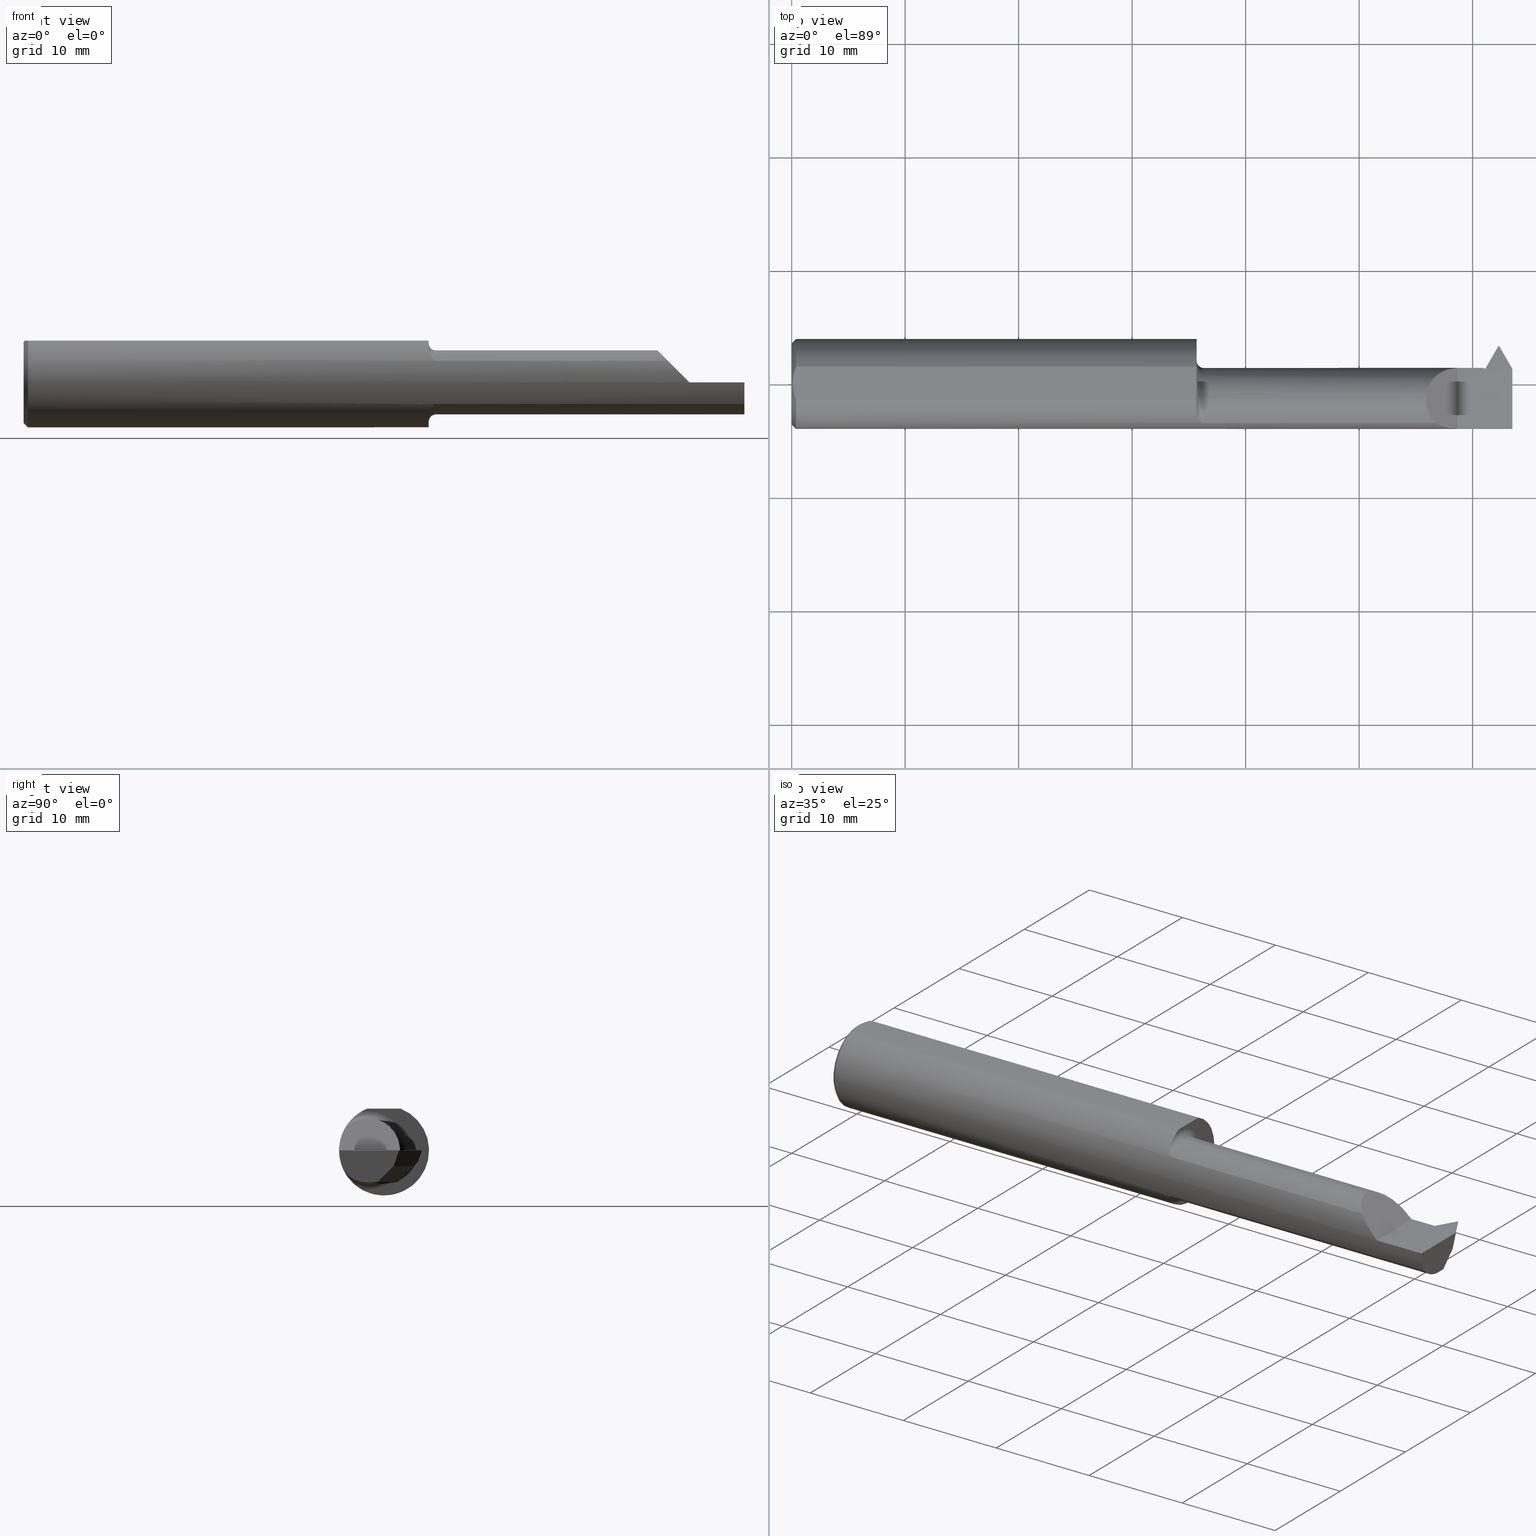
[diagram: canonical four-view strip — front | top / right | iso, engineering-drawing reading convention]
A machine part, canonical four-view strip (front | top / right | iso — engineering-drawing reading convention). The complete STEP part file that produces these views, byte-faithful:
ISO-10303-21;
HEADER;
FILE_DESCRIPTION (( 'STEP AP203' ),
    '1' );
FILE_NAME ('230313-TT2901000.STEP',
    '2025-04-22T23:01:48',
    ( '' ),
    ( '' ),
    'SwSTEP 2.0',
    'SolidWorks 2024',
    '' );
FILE_SCHEMA (( 'CONFIG_CONTROL_DESIGN' ));
ENDSEC;

DATA;
#1 = CARTESIAN_POINT ( 'NONE',  ( 2.392464930598871664, 0.04536493059887181101, -0.04719955211401768991 ) ) ;
#2 = ORIENTED_EDGE ( 'NONE', *, *, #233, .F. ) ;
#3 = ADVANCED_FACE ( 'NONE', ( #312 ), #151, .F. ) ;
#4 = PLANE ( 'NONE',  #260 ) ;
#5 = LINE ( 'NONE', #583, #186 ) ;
#6 = ORIENTED_EDGE ( 'NONE', *, *, #919, .F. ) ;
#7 = ORIENTED_EDGE ( 'NONE', *, *, #913, .T. ) ;
#8 = DIRECTION ( 'NONE',  ( 1.000000000000000000, 0.000000000000000000, 0.000000000000000000 ) ) ;
#9 = CARTESIAN_POINT ( 'NONE',  ( 2.310000000000000053, 0.1749999999999999889, -3.979970649922725226E-17 ) ) ;
#10 = CARTESIAN_POINT ( 'NONE',  ( 2.446168426406539975, 0.1023411906293526102, -0.05500000000000006273 ) ) ;
#11 = ORIENTED_EDGE ( 'NONE', *, *, #569, .T. ) ;
#12 = AXIS2_PLACEMENT_3D ( 'NONE', #777, #929, #868 ) ;
#13 = CARTESIAN_POINT ( 'NONE',  ( 0.000000000000000000, 0.000000000000000000, 0.000000000000000000 ) ) ;
#14 = AXIS2_PLACEMENT_3D ( 'NONE', #179, #920, #535 ) ;
#15 = ADVANCED_FACE ( 'NONE', ( #730 ), #667, .F. ) ;
#16 = DIRECTION ( 'NONE',  ( 0.1751915364254251206, 0.1751915364254256202, 0.9688218882383889952 ) ) ;
#17 = ADVANCED_FACE ( 'NONE', ( #584 ), #515, .T. ) ;
#18 = CARTESIAN_POINT ( 'NONE',  ( 1.405000000000000249, 0.2559000000000000163, 0.000000000000000000 ) ) ;
#19 = ORIENTED_EDGE ( 'NONE', *, *, #597, .F. ) ;
#20 = DIRECTION ( 'NONE',  ( 0.000000000000000000, 0.000000000000000000, 1.000000000000000000 ) ) ;
#21 = CARTESIAN_POINT ( 'NONE',  ( 2.412458785480013024, 0.03700406005429841827, -0.06195031978540700007 ) ) ;
#22 = EDGE_CURVE ( 'NONE', #24, #524, #506, .T. ) ;
#23 = CARTESIAN_POINT ( 'NONE',  ( 2.500000000000000000, 0.1749999999999999889, -3.979970649922725226E-17 ) ) ;
#24 = VERTEX_POINT ( 'NONE', #381 ) ;
#25 = CARTESIAN_POINT ( 'NONE',  ( 2.310000000000000053, 0.05589995495494588795, 9.999999999973052634E-05 ) ) ;
#26 = CARTESIAN_POINT ( 'NONE',  ( 2.283651030168674989, -0.1560830884207283498, 0.02644896983132509483 ) ) ;
#27 = ORIENTED_EDGE ( 'NONE', *, *, #770, .F. ) ;
#28 = PERSON_AND_ORGANIZATION_ROLE ( 'design_owner' ) ;
#29 = CIRCLE ( 'NONE', #152, 0.1560999999999999888 ) ;
#30 = AXIS2_PLACEMENT_3D ( 'NONE', #333, #50, #482 ) ;
#31 = CIRCLE ( 'NONE', #108, 0.1360000000000000098 ) ;
#32 = DIRECTION ( 'NONE',  ( -1.000000000000000000, -0.000000000000000000, -0.000000000000000000 ) ) ;
#33 = CARTESIAN_POINT ( 'NONE',  ( 1.429999999999999938, -0.1368622504537204410, 0.07507286061382698050 ) ) ;
#34 = ORIENTED_EDGE ( 'NONE', *, *, #48, .F. ) ;
#35 = EDGE_CURVE ( 'NONE', #297, #498, #353, .T. ) ;
#36 = CARTESIAN_POINT ( 'NONE',  ( 1.417567871908215205, -0.1302407872897889951, -0.08611932130684236963 ) ) ;
#37 = LINE ( 'NONE', #174, #291 ) ;
#38 = CARTESIAN_POINT ( 'NONE',  ( 1.423464868753674173, -0.1351961852369925332, 0.07804305429669788907 ) ) ;
#39 = VERTEX_POINT ( 'NONE', #672 ) ;
#40 = DIRECTION ( 'NONE',  ( 0.000000000000000000, 0.000000000000000000, -1.000000000000000000 ) ) ;
#41 = LINE ( 'NONE', #837, #521 ) ;
#42 = ORIENTED_EDGE ( 'NONE', *, *, #898, .F. ) ;
#43 = PERSON_AND_ORGANIZATION ( #613, #339 ) ;
#44 = CARTESIAN_POINT ( 'NONE',  ( 2.412458785480013024, -0.05509999999999999620, 0.000000000000000000 ) ) ;
#45 = VECTOR ( 'NONE', #157, 39.37007874015748854 ) ;
#46 = VECTOR ( 'NONE', #617, 39.37007874015748143 ) ;
#48 = EDGE_CURVE ( 'NONE', #664, #377, #448, .T. ) ;
#47 = CARTESIAN_POINT ( 'NONE',  ( 1.405000000000000249, -0.08082776769509972259, 0.1335443071397166837 ) ) ;
#49 = ORIENTED_EDGE ( 'NONE', *, *, #532, .F. ) ;
#50 = DIRECTION ( 'NONE',  ( -0.8522042425194483739, -0.4920203488231476574, 0.1779435454738421962 ) ) ;
#51 =( BOUNDED_CURVE ( )  B_SPLINE_CURVE ( 3, ( #25, #236, #246, #540 ),
 .UNSPECIFIED., .F., .F. ) 
 B_SPLINE_CURVE_WITH_KNOTS ( ( 4, 4 ),
 ( 4.713289881407453308, 6.283185307179586232 ),
 .UNSPECIFIED. ) 
 CURVE ( )  GEOMETRIC_REPRESENTATION_ITEM ( )  RATIONAL_B_SPLINE_CURVE ( ( 1.000000000000000000, 0.8049501506993195221, 0.8049501506993195221, 1.000000000000000000 ) ) 
 REPRESENTATION_ITEM ( '' )  );
#52 = DIRECTION ( 'NONE',  ( 0.7745966692414795185, -0.4472135954999614249, 0.4472135954999612584 ) ) ;
#53 = VERTEX_POINT ( 'NONE', #10 ) ;
#54 = DIRECTION ( 'NONE',  ( 0.000000000000000000, -0.3401001459858862819, -0.9403892229818348047 ) ) ;
#55 = CARTESIAN_POINT ( 'NONE',  ( 2.310000000000000053, 0.1749999999999999889, -3.979970649922725226E-17 ) ) ;
#56 = ORIENTED_EDGE ( 'NONE', *, *, #426, .F. ) ;
#57 = EDGE_CURVE ( 'NONE', #903, #234, #893, .T. ) ;
#58 = EDGE_CURVE ( 'NONE', #889, #476, #954, .T. ) ;
#59 = LINE ( 'NONE', #856, #737 ) ;
#60 = DIRECTION ( 'NONE',  ( 0.000000000000000000, 0.000000000000000000, -1.000000000000000000 ) ) ;
#61 = ORIENTED_EDGE ( 'NONE', *, *, #116, .T. ) ;
#62 = VECTOR ( 'NONE', #436, 39.37007874015748143 ) ;
#63 = EDGE_CURVE ( 'NONE', #248, #501, #69, .T. ) ;
#64 = CARTESIAN_POINT ( 'NONE',  ( 2.500000000000000000, -0.05756040305626781983, 0.1450999999999999512 ) ) ;
#65 = DIRECTION ( 'NONE',  ( 0.000000000000000000, 7.093263402666859258E-15, -1.000000000000000000 ) ) ;
#66 = ORIENTED_EDGE ( 'NONE', *, *, #334, .T. ) ;
#67 = DIRECTION ( 'NONE',  ( -1.000000000000000000, -0.000000000000000000, -0.000000000000000000 ) ) ;
#68 = FACE_OUTER_BOUND ( 'NONE', #735, .T. ) ;
#69 = LINE ( 'NONE', #657, #478 ) ;
#70 = VERTEX_POINT ( 'NONE', #897 ) ;
#71 = CARTESIAN_POINT ( 'NONE',  ( 0.000000000000000000, 0.1749999999999999889, 0.1450999999999999512 ) ) ;
#72 = CYLINDRICAL_SURFACE ( 'NONE', #676, 0.1110000000000000014 ) ;
#73 = ADVANCED_FACE ( 'NONE', ( #251 ), #331, .F. ) ;
#74 = AXIS2_PLACEMENT_3D ( 'NONE', #375, #290, #146 ) ;
#75 = ORIENTED_EDGE ( 'NONE', *, *, #378, .F. ) ;
#76 = DIRECTION ( 'NONE',  ( 0.000000000000000000, 0.000000000000000000, -1.000000000000000000 ) ) ;
#77 = FACE_OUTER_BOUND ( 'NONE', #176, .T. ) ;
#78 = DIRECTION ( 'NONE',  ( 0.4999999999999998335, 0.000000000000000000, 0.8660254037844385966 ) ) ;
#79 = EDGE_LOOP ( 'NONE', ( #409, #838, #367, #454, #75 ) ) ;
#80 = LINE ( 'NONE', #212, #505 ) ;
#81 = CARTESIAN_POINT ( 'NONE',  ( 2.500000000000000000, 0.05265867555372412412, 0.000000000000000000 ) ) ;
#82 = DIRECTION ( 'NONE',  ( -1.000000000000000000, -0.000000000000000000, -0.000000000000000000 ) ) ;
#83 = ORIENTED_EDGE ( 'NONE', *, *, #497, .F. ) ;
#84 = ADVANCED_FACE ( 'NONE', ( #828 ), #621, .F. ) ;
#85 = EDGE_CURVE ( 'NONE', #707, #350, #316, .T. ) ;
#86 = CARTESIAN_POINT ( 'NONE',  ( 2.452999999999999847, 0.1340650635094609855, 0.000000000000000000 ) ) ;
#87 = FACE_OUTER_BOUND ( 'NONE', #394, .T. ) ;
#88 = DIRECTION ( 'NONE',  ( -0.7745966692414835153, -0.4472135954999578722, 0.4472135954999578722 ) ) ;
#89 = ORIENTED_EDGE ( 'NONE', *, *, #945, .F. ) ;
#90 = CARTESIAN_POINT ( 'NONE',  ( 1.426349781358731805, -0.1364086230541974309, -0.07590362166592530546 ) ) ;
#91 = CLOSED_SHELL ( 'NONE', ( #943, #406, #398, #103, #273, #470, #457, #859, #360, #358, #444, #299, #3, #388, #17, #799, #401, #456, #293, #84, #840, #733, #73, #418, #669, #15, #244, #904 ) ) ;
#92 = EDGE_CURVE ( 'NONE', #476, #111, #41, .T. ) ;
#93 = CARTESIAN_POINT ( 'NONE',  ( 0.01158831187866349310, 0.04830813087846574927, 0.1450999999999999235 ) ) ;
#94 = CARTESIAN_POINT ( 'NONE',  ( 1.411300778209995999, -0.1198130594394493514, 0.1003199648005457800 ) ) ;
#95 = ORIENTED_EDGE ( 'NONE', *, *, #427, .F. ) ;
#96 = CARTESIAN_POINT ( 'NONE',  ( 1.405000000000000249, 0.04536493059887179019, -0.04719955211401773848 ) ) ;
#97 = CARTESIAN_POINT ( 'NONE',  ( 2.414716234995701871, 0.02897099956963808051, -0.07389339752676279960 ) ) ;
#98 = CARTESIAN_POINT ( 'NONE',  ( 1.905500000000000194, -0.1368622504537204410, -0.07507286061382698050 ) ) ;
#99 = ORIENTED_EDGE ( 'NONE', *, *, #806, .F. ) ;
#100 = MECHANICAL_CONTEXT ( 'NONE', #396, 'mechanical' ) ;
#101 = CARTESIAN_POINT ( 'NONE',  ( 2.500000000000000000, 0.03276743523313500189, -0.05500000000000003497 ) ) ;
#102 = CARTESIAN_POINT ( 'NONE',  ( 1.405000000000000249, -0.08082776769509972259, 0.1335443071397166837 ) ) ;
#103 = ADVANCED_FACE ( 'NONE', ( #763 ), #841, .T. ) ;
#104 = EDGE_LOOP ( 'NONE', ( #2, #843, #419, #220 ) ) ;
#105 = LINE ( 'NONE', #96, #46 ) ;
#106 = VECTOR ( 'NONE', #202, 39.37007874015748143 ) ;
#107 = VECTOR ( 'NONE', #575, 39.37007874015748143 ) ;
#108 = AXIS2_PLACEMENT_3D ( 'NONE', #655, #736, #76 ) ;
#109 = DESIGN_CONTEXT ( 'detailed design', #728, 'design' ) ;
#110 = CARTESIAN_POINT ( 'NONE',  ( 2.446168426406539531, 0.1173411906293526652, -0.03999999999999985512 ) ) ;
#111 = VERTEX_POINT ( 'NONE', #408 ) ;
#112 = CARTESIAN_POINT ( 'NONE',  ( 2.419121698429875345, -0.01083030511044175831, -0.1110000000000003345 ) ) ;
#113 = DIRECTION ( 'NONE',  ( -1.000000000000000000, -0.000000000000000000, -0.000000000000000000 ) ) ;
#114 = VERTEX_POINT ( 'NONE', #102 ) ;
#115 = DATE_AND_TIME ( #479, #614 ) ;
#116 = EDGE_CURVE ( 'NONE', #248, #336, #397, .T. ) ;
#117 = LINE ( 'NONE', #594, #229 ) ;
#118 = DIRECTION ( 'NONE',  ( 0.000000000000000000, -1.000000000000000000, 0.000000000000000000 ) ) ;
#119 = ORIENTED_EDGE ( 'NONE', *, *, #495, .F. ) ;
#120 = CARTESIAN_POINT ( 'NONE',  ( 2.419930999995321574, -0.05510000000000080111, -0.1109999999999999876 ) ) ;
#121 = EDGE_CURVE ( 'NONE', #572, #234, #549, .T. ) ;
#122 = AXIS2_PLACEMENT_3D ( 'NONE', #632, #412, #494 ) ;
#123 = AXIS2_PLACEMENT_3D ( 'NONE', #883, #731, #726 ) ;
#124 = CARTESIAN_POINT ( 'NONE',  ( 2.310000000000000497, 0.1318999999999989348, -3.979970649922725226E-17 ) ) ;
#125 = ORIENTED_EDGE ( 'NONE', *, *, #502, .T. ) ;
#126 = DIRECTION ( 'NONE',  ( -1.000000000000000000, -0.000000000000000000, -0.000000000000000000 ) ) ;
#127 = EDGE_CURVE ( 'NONE', #707, #292, #909, .T. ) ;
#128 = DIRECTION ( 'NONE',  ( -0.1021978390768666090, 0.1770118497048815964, 0.9788883525469466163 ) ) ;
#129 = EDGE_CURVE ( 'NONE', #528, #272, #577, .T. ) ;
#130 = ORIENTED_EDGE ( 'NONE', *, *, #820, .T. ) ;
#131 = LINE ( 'NONE', #573, #906 ) ;
#132 = CARTESIAN_POINT ( 'NONE',  ( 2.459831573593460607, 0.04634119062935222050, -0.1110000000000010562 ) ) ;
#133 = ORIENTED_EDGE ( 'NONE', *, *, #63, .T. ) ;
#134 = PERSON_AND_ORGANIZATION ( #613, #339 ) ;
#135 = CARTESIAN_POINT ( 'NONE',  ( 1.405000000000000249, -0.05509999999999999620, 0.000000000000000000 ) ) ;
#136 = CARTESIAN_POINT ( 'NONE',  ( 0.01499999999999970975, -0.05756040305626781983, 0.1450999999999999512 ) ) ;
#137 = AXIS2_PLACEMENT_3D ( 'NONE', #392, #845, #473 ) ;
#138 = ORIENTED_EDGE ( 'NONE', *, *, #178, .F. ) ;
#139 = VECTOR ( 'NONE', #606, 39.37007874015748143 ) ;
#140 = AXIS2_PLACEMENT_3D ( 'NONE', #289, #873, #803 ) ;
#141 = CYLINDRICAL_SURFACE ( 'NONE', #942, 0.1110000000000000014 ) ;
#142 = CARTESIAN_POINT ( 'NONE',  ( 0.01499999999999970281, 0.000000000000000000, 0.000000000000000000 ) ) ;
#143 = ORIENTED_EDGE ( 'NONE', *, *, #748, .T. ) ;
#144 = CARTESIAN_POINT ( 'NONE',  ( 0.01499999999999970281, 0.000000000000000000, -0.1560999999999999888 ) ) ;
#145 = EDGE_CURVE ( 'NONE', #221, #53, #768, .T. ) ;
#146 = DIRECTION ( 'NONE',  ( 0.1005834662396471041, 0.000000000000000000, -0.9949286237309779013 ) ) ;
#147 = VERTEX_POINT ( 'NONE', #530 ) ;
#148 = ORIENTED_EDGE ( 'NONE', *, *, #127, .T. ) ;
#149 = CARTESIAN_POINT ( 'NONE',  ( 2.412458785480013024, 0.04395437983970537643, -0.05500000000000004191 ) ) ;
#150 = FACE_OUTER_BOUND ( 'NONE', #565, .T. ) ;
#151 = PLANE ( 'NONE',  #769 ) ;
#152 = AXIS2_PLACEMENT_3D ( 'NONE', #407, #700, #40 ) ;
#153 = VECTOR ( 'NONE', #697, 39.37007874015748143 ) ;
#154 = LOCAL_TIME ( 16, 1, 48.00000000000000000, #844 ) ;
#155 = ORIENTED_EDGE ( 'NONE', *, *, #127, .F. ) ;
#156 = CARTESIAN_POINT ( 'NONE',  ( 2.412458785480013024, 0.04395437983970539031, -0.05500000000000003497 ) ) ;
#157 = DIRECTION ( 'NONE',  ( 0.000000000000000000, 0.7071067811865474617, 0.7071067811865474617 ) ) ;
#158 = EDGE_CURVE ( 'NONE', #654, #903, #237, .T. ) ;
#159 = VERTEX_POINT ( 'NONE', #684 ) ;
#160 = EDGE_CURVE ( 'NONE', #681, #114, #878, .T. ) ;
#161 = ORIENTED_EDGE ( 'NONE', *, *, #742, .T. ) ;
#162 = CARTESIAN_POINT ( 'NONE',  ( 1.411298582722805506, -0.1198197303235669919, -0.1003181488768663393 ) ) ;
#163 = DIRECTION ( 'NONE',  ( -1.000000000000000000, 0.000000000000000000, -0.000000000000000000 ) ) ;
#164 = ORIENTED_EDGE ( 'NONE', *, *, #495, .T. ) ;
#165 = ORIENTED_EDGE ( 'NONE', *, *, #57, .F. ) ;
#166 = EDGE_CURVE ( 'NONE', #297, #528, #320, .T. ) ;
#167 = APPROVAL_ROLE ( '' ) ;
#168 = DIRECTION ( 'NONE',  ( 1.000000000000000000, 0.000000000000000000, 0.000000000000000000 ) ) ;
#169 = CARTESIAN_POINT ( 'NONE',  ( 2.500000000000000000, -0.1560999999999999888, -3.979970649922725226E-17 ) ) ;
#170 = ORIENTED_EDGE ( 'NONE', *, *, #129, .F. ) ;
#171 = AXIS2_PLACEMENT_3D ( 'NONE', #732, #296, #525 ) ;
#172 = CC_DESIGN_PERSON_AND_ORGANIZATION_ASSIGNMENT ( #134, #776, ( #709 ) ) ;
#173 = DIRECTION ( 'NONE',  ( 0.5000000000000022204, -0.8660254037844373753, 0.000000000000000000 ) ) ;
#174 = CARTESIAN_POINT ( 'NONE',  ( 2.453000000000000291, 0.1141738231888718980, -0.05500000000000004191 ) ) ;
#175 = CARTESIAN_POINT ( 'NONE',  ( 2.235027139386173367, -0.1368622504537203854, 0.07507286061382700826 ) ) ;
#176 = EDGE_LOOP ( 'NONE', ( #228, #11, #414, #332 ) ) ;
#177 = CARTESIAN_POINT ( 'NONE',  ( 0.000000000000000000, 0.000000000000000000, -0.1411000000000003085 ) ) ;
#178 = EDGE_CURVE ( 'NONE', #890, #114, #785, .T. ) ;
#179 = CARTESIAN_POINT ( 'NONE',  ( 2.399999999999999911, 0.1173411906293525125, -0.04000000000000000083 ) ) ;
#180 = ORIENTED_EDGE ( 'NONE', *, *, #287, .F. ) ;
#181 = CARTESIAN_POINT ( 'NONE',  ( 1.405000000000000249, -0.08082776769509972259, -0.1335443071397166837 ) ) ;
#182 = CARTESIAN_POINT ( 'NONE',  ( 2.406716679003209070, 0.05389999999999999653, 0.000000000000000000 ) ) ;
#183 = DIRECTION ( 'NONE',  ( 0.000000000000000000, 0.000000000000000000, 1.000000000000000000 ) ) ;
#184 = ORIENTED_EDGE ( 'NONE', *, *, #485, .F. ) ;
#185 = CALENDAR_DATE ( 2025, 22, 4 ) ;
#186 = VECTOR ( 'NONE', #507, 39.37007874015748143 ) ;
#187 = VECTOR ( 'NONE', #744, 39.37007874015748854 ) ;
#188 = DIRECTION ( 'NONE',  ( -0.000000000000000000, 7.249897465490726104E-15, 1.000000000000000000 ) ) ;
#189 = CARTESIAN_POINT ( 'NONE',  ( 1.422300575926264798, -0.1344565892346399061, 0.07931625727899710432 ) ) ;
#190 = VERTEX_POINT ( 'NONE', #424 ) ;
#191 = DATE_TIME_ROLE ( 'classification_date' ) ;
#192 = CARTESIAN_POINT ( 'NONE',  ( 1.429999999999999938, -0.05509999999999999620, 0.1110000000000000014 ) ) ;
#193 = CARTESIAN_POINT ( 'NONE',  ( 2.459831573593460607, 0.1023411906293526935, -0.05500000000000002803 ) ) ;
#194 = ORIENTED_EDGE ( 'NONE', *, *, #806, .T. ) ;
#195 = EDGE_CURVE ( 'NONE', #916, #111, #718, .T. ) ;
#196 = FACE_OUTER_BOUND ( 'NONE', #725, .T. ) ;
#197 = DIRECTION ( 'NONE',  ( 0.5000000000000046629, 0.000000000000000000, -0.8660254037844359321 ) ) ;
#198 = ORIENTED_EDGE ( 'NONE', *, *, #256, .T. ) ;
#199 = CARTESIAN_POINT ( 'NONE',  ( 2.411644403619502608, 0.04536493059887507229, -0.04719955211401832829 ) ) ;
#200 = AXIS2_PLACEMENT_3D ( 'NONE', #423, #126, #704 ) ;
#201 = VECTOR ( 'NONE', #67, 39.37007874015748143 ) ;
#202 = DIRECTION ( 'NONE',  ( 1.000000000000000000, -0.000000000000000000, -0.000000000000000000 ) ) ;
#203 = ORIENTED_EDGE ( 'NONE', *, *, #627, .F. ) ;
#204 = DIRECTION ( 'NONE',  ( 0.000000000000000000, 0.7071067811865474617, 0.7071067811865474617 ) ) ;
#205 = DIRECTION ( 'NONE',  ( 0.000000000000000000, 0.000000000000000000, -1.000000000000000000 ) ) ;
#206 = ORIENTED_EDGE ( 'NONE', *, *, #195, .T. ) ;
#207 = CARTESIAN_POINT ( 'NONE',  ( 0.01499999999999970281, 0.000000000000000000, 0.000000000000000000 ) ) ;
#208 = FACE_OUTER_BOUND ( 'NONE', #425, .T. ) ;
#209 = CC_DESIGN_PERSON_AND_ORGANIZATION_ASSIGNMENT ( #792, #410, ( #849 ) ) ;
#210 = ORIENTED_EDGE ( 'NONE', *, *, #121, .F. ) ;
#211 = B_SPLINE_CURVE_WITH_KNOTS ( 'NONE', 3,
 ( #766, #93, #620, #683, #918, #459 ),
 .UNSPECIFIED., .F., .F.,
 ( 4, 2, 4 ),
 ( 0.003161694502929457244, 0.003901142131335591512, 0.004640589759741725780 ),
 .UNSPECIFIED. ) ;
#212 = CARTESIAN_POINT ( 'NONE',  ( 2.442414596679994165, 0.07650827955772949995, -0.1110000000000009451 ) ) ;
#213 = CARTESIAN_POINT ( 'NONE',  ( 2.165000000000000480, 0.1749999999999999889, 0.1450999999999999512 ) ) ;
#214 = AXIS2_PLACEMENT_3D ( 'NONE', #677, #168, #618 ) ;
#215 = VECTOR ( 'NONE', #173, 39.37007874015748854 ) ;
#216 = DIRECTION ( 'NONE',  ( 1.000000000000000000, 0.000000000000000000, 0.000000000000000000 ) ) ;
#217 = VECTOR ( 'NONE', #847, 39.37007874015748143 ) ;
#218 = DIRECTION ( 'NONE',  ( 0.000000000000000000, 0.000000000000000000, 1.000000000000000000 ) ) ;
#219 = CARTESIAN_POINT ( 'NONE',  ( 2.310000000000000053, 0.1749999999999999889, -3.979970649922725226E-17 ) ) ;
#220 = ORIENTED_EDGE ( 'NONE', *, *, #145, .F. ) ;
#221 = VERTEX_POINT ( 'NONE', #781 ) ;
#222 = B_SPLINE_CURVE_WITH_KNOTS ( 'NONE', 3,
 ( #596, #953, #894, #884, #435, #286 ),
 .UNSPECIFIED., .F., .F.,
 ( 4, 2, 4 ),
 ( 0.004640589759741725780, 0.005379751224090827816, 0.006118912688439928985 ),
 .UNSPECIFIED. ) ;
#223 = LINE ( 'NONE', #64, #907 ) ;
#224 = FACE_BOUND ( 'NONE', #814, .T. ) ;
#225 = CARTESIAN_POINT ( 'NONE',  ( 2.400999999999999801, 0.05590000000000001218, 0.000000000000000000 ) ) ;
#226 = DIRECTION ( 'NONE',  ( -1.000000000000000000, 0.000000000000000000, 0.000000000000000000 ) ) ;
#227 = CARTESIAN_POINT ( 'NONE',  ( 2.211790491667020575, -0.1155267122845504424, 0.09830950833298025826 ) ) ;
#228 = ORIENTED_EDGE ( 'NONE', *, *, #334, .F. ) ;
#229 = VECTOR ( 'NONE', #952, 39.37007874015748143 ) ;
#230 = TOROIDAL_SURFACE ( 'NONE', #802, 0.1360000000000000098, 0.02500000000000000139 ) ;
#231 = EDGE_LOOP ( 'NONE', ( #935, #422, #834, #42 ) ) ;
#232 = DIRECTION ( 'NONE',  ( 0.000000000000000000, 0.000000000000000000, -1.000000000000000000 ) ) ;
#233 = EDGE_CURVE ( 'NONE', #635, #221, #714, .T. ) ;
#234 = VERTEX_POINT ( 'NONE', #857 ) ;
#235 = ORIENTED_EDGE ( 'NONE', *, *, #597, .T. ) ;
#236 = CARTESIAN_POINT ( 'NONE',  ( 2.245024168887416405, 0.05584141814640498219, 0.06507583111258367914 ) ) ;
#237 = LINE ( 'NONE', #98, #217 ) ;
#238 = VERTEX_POINT ( 'NONE', #349 ) ;
#239 = FACE_OUTER_BOUND ( 'NONE', #862, .T. ) ;
#240 = CARTESIAN_POINT ( 'NONE',  ( 2.412458785480013024, 0.006850319785407048105, -0.09210406005429837284 ) ) ;
#241 = CARTESIAN_POINT ( 'NONE',  ( 2.258128869355540136, -0.1495342103855425986, 0.05197113064445998271 ) ) ;
#242 = ORIENTED_EDGE ( 'NONE', *, *, #871, .F. ) ;
#243 = AXIS2_PLACEMENT_3D ( 'NONE', #13, #20, #689 ) ;
#244 = ADVANCED_FACE ( 'NONE', ( #711 ), #778, .F. ) ;
#245 = CARTESIAN_POINT ( 'NONE',  ( 1.423506495904680591, -0.1352163519649315082, -0.07800775850415038459 ) ) ;
#246 = CARTESIAN_POINT ( 'NONE',  ( 2.199100000000000943, 0.009875857480521079562, 0.1110000000000000014 ) ) ;
#247 = CARTESIAN_POINT ( 'NONE',  ( 1.417545102296320358, -0.1302115092214859438, 0.08616258549502014974 ) ) ;
#248 = VERTEX_POINT ( 'NONE', #193 ) ;
#249 = CARTESIAN_POINT ( 'NONE',  ( 1.405000000000000915, -0.09362651965208497462, -0.1257978552532720562 ) ) ;
#250 = APPROVAL ( #917, 'UNSPECIFIED' ) ;
#251 = FACE_OUTER_BOUND ( 'NONE', #288, .T. ) ;
#252 = ORIENTED_EDGE ( 'NONE', *, *, #740, .F. ) ;
#253 = CARTESIAN_POINT ( 'NONE',  ( 2.500000000000000000, 0.000000000000000000, 0.000000000000000000 ) ) ;
#254 = EDGE_CURVE ( 'NONE', #707, #654, #817, .T. ) ;
#256 = EDGE_CURVE ( 'NONE', #221, #336, #706, .T. ) ;
#255 = CARTESIAN_POINT ( 'NONE',  ( 1.405000000000000249, -0.05509999999999999620, 0.000000000000000000 ) ) ;
#257 = ORIENTED_EDGE ( 'NONE', *, *, #625, .T. ) ;
#258 = CALENDAR_DATE ( 2025, 22, 4 ) ;
#259 = VECTOR ( 'NONE', #128, 39.37007874015748143 ) ;
#260 = AXIS2_PLACEMENT_3D ( 'NONE', #300, #226, #517 ) ;
#261 = DIRECTION ( 'NONE',  ( 2.731847993664263613E-15, -1.000000000000000000, -0.000000000000000000 ) ) ;
#262 = FACE_OUTER_BOUND ( 'NONE', #875, .T. ) ;
#263 = EDGE_CURVE ( 'NONE', #292, #498, #346, .T. ) ;
#264 = ORIENTED_EDGE ( 'NONE', *, *, #748, .F. ) ;
#265 = COORDINATED_UNIVERSAL_TIME_OFFSET ( 8, 0, .BEHIND. ) ;
#266 = CARTESIAN_POINT ( 'NONE',  ( 1.405000000000000249, -0.05756040305626783371, 0.1450999999999999512 ) ) ;
#267 = DIRECTION ( 'NONE',  ( 1.000000000000000000, -0.000000000000000000, -0.000000000000000000 ) ) ;
#268 = EDGE_LOOP ( 'NONE', ( #252, #951, #712, #680, #386, #599, #854, #34, #791 ) ) ;
#269 = CC_DESIGN_DATE_AND_TIME_ASSIGNMENT ( #759, #948, ( #574 ) ) ;
#270 = DIRECTION ( 'NONE',  ( 0.000000000000000000, 0.000000000000000000, 1.000000000000000000 ) ) ;
#271 = CARTESIAN_POINT ( 'NONE',  ( 2.235027139386173367, -0.1368622504537203854, 0.07507286061382700826 ) ) ;
#272 = VERTEX_POINT ( 'NONE', #271 ) ;
#273 = ADVANCED_FACE ( 'NONE', ( #262 ), #660, .T. ) ;
#274 = CARTESIAN_POINT ( 'NONE',  ( 2.310000000000000053, 0.000000000000000000, 0.000000000000000000 ) ) ;
#275 = AXIS2_PLACEMENT_3D ( 'NONE', #483, #724, #861 ) ;
#276 = AXIS2_PLACEMENT_3D ( 'NONE', #306, #216, #508 ) ;
#277 = CARTESIAN_POINT ( 'NONE',  ( 1.405398932116763033, -0.09332769694267485650, 0.1253468102978374799 ) ) ;
#278 = ORIENTED_EDGE ( 'NONE', *, *, #378, .T. ) ;
#279 = APPROVAL ( #623, 'UNSPECIFIED' ) ;
#280 = LINE ( 'NONE', #637, #595 ) ;
#281 = VERTEX_POINT ( 'NONE', #564 ) ;
#282 = SECURITY_CLASSIFICATION_LEVEL ( 'unclassified' ) ;
#283 = PRODUCT_DEFINITION_SHAPE ( 'NONE', 'NONE',  #574 ) ;
#284 = LINE ( 'NONE', #86, #215 ) ;
#285 = EDGE_CURVE ( 'NONE', #872, #715, #280, .T. ) ;
#286 = CARTESIAN_POINT ( 'NONE',  ( 0.01499999999999970975, -0.05756040305626781983, 0.1450999999999999512 ) ) ;
#287 = EDGE_CURVE ( 'NONE', #822, #681, #870, .T. ) ;
#288 = EDGE_LOOP ( 'NONE', ( #463, #61, #440, #858, #432, #673 ) ) ;
#289 = CARTESIAN_POINT ( 'NONE',  ( 1.429999999999999938, -0.05509999999999998233, 0.1360000000000000098 ) ) ;
#290 = DIRECTION ( 'NONE',  ( 0.9947640934854949935, 0.01818544582510440988, 0.1005668328631443009 ) ) ;
#291 = VECTOR ( 'NONE', #395, 39.37007874015748854 ) ;
#292 = VERTEX_POINT ( 'NONE', #556 ) ;
#293 = ADVANCED_FACE ( 'NONE', ( #208 ), #865, .F. ) ;
#294 = ORIENTED_EDGE ( 'NONE', *, *, #160, .T. ) ;
#295 = CARTESIAN_POINT ( 'NONE',  ( 0.01499999999999970281, 0.000000000000000000, 0.000000000000000000 ) ) ;
#296 = DIRECTION ( 'NONE',  ( 1.000000000000000000, 0.000000000000000000, 0.000000000000000000 ) ) ;
#297 = VERTEX_POINT ( 'NONE', #934 ) ;
#298 = ORIENTED_EDGE ( 'NONE', *, *, #160, .F. ) ;
#299 = ADVANCED_FACE ( 'NONE', ( #633 ), #794, .T. ) ;
#300 = CARTESIAN_POINT ( 'NONE',  ( 2.412458785480013024, -0.03604562016029463911, -0.1350000000000000644 ) ) ;
#301 = ORIENTED_EDGE ( 'NONE', *, *, #646, .T. ) ;
#302 = VERTEX_POINT ( 'NONE', #136 ) ;
#303 = FACE_OUTER_BOUND ( 'NONE', #546, .T. ) ;
#304 = CC_DESIGN_PERSON_AND_ORGANIZATION_ASSIGNMENT ( #391, #28, ( #801 ) ) ;
#305 = DIRECTION ( 'NONE',  ( -0.000000000000000000, 0.000000000000000000, 1.000000000000000000 ) ) ;
#306 = CARTESIAN_POINT ( 'NONE',  ( 1.429999999999999938, -0.05509999999999999620, 0.000000000000000000 ) ) ;
#307 = VECTOR ( 'NONE', #860, 39.37007874015748143 ) ;
#308 = VECTOR ( 'NONE', #626, 39.37007874015748143 ) ;
#309 = LOCAL_TIME ( 16, 1, 48.00000000000000000, #464 ) ;
#310 = VERTEX_POINT ( 'NONE', #496 ) ;
#311 = DIRECTION ( 'NONE',  ( 0.09000871797897587456, -0.6219594709071027960, -0.7778591435708254176 ) ) ;
#312 = FACE_OUTER_BOUND ( 'NONE', #698, .T. ) ;
#313 = ORIENTED_EDGE ( 'NONE', *, *, #129, .T. ) ;
#314 = DIRECTION ( 'NONE',  ( 1.000000000000000000, 0.000000000000000000, 0.000000000000000000 ) ) ;
#315 = CARTESIAN_POINT ( 'NONE',  ( 2.414716234995701871, 0.01879339752676281033, -0.08407099956963805243 ) ) ;
#316 = LINE ( 'NONE', #23, #139 ) ;
#317 = ORIENTED_EDGE ( 'NONE', *, *, #485, .T. ) ;
#318 = CARTESIAN_POINT ( 'NONE',  ( 1.422325674773647020, -0.1344725336059487963, -0.07928898134248256457 ) ) ;
#319 =( BOUNDED_CURVE ( )  B_SPLINE_CURVE ( 3, ( #21, #97, #315, #240 ),
 .UNSPECIFIED., .F., .F. ) 
 B_SPLINE_CURVE_WITH_KNOTS ( ( 4, 4 ),
 ( 2.948301984786019236, 3.334883322393566996 ),
 .UNSPECIFIED. ) 
 CURVE ( )  GEOMETRIC_REPRESENTATION_ITEM ( )  RATIONAL_B_SPLINE_CURVE ( ( 1.000000000000000000, 0.9875849649017649501, 0.9875849649017649501, 1.000000000000000000 ) ) 
 REPRESENTATION_ITEM ( '' )  );
#320 = LINE ( 'NONE', #393, #153 ) ;
#321 = ORIENTED_EDGE ( 'NONE', *, *, #263, .F. ) ;
#322 = VECTOR ( 'NONE', #54, 39.37007874015748854 ) ;
#323 = APPLICATION_PROTOCOL_DEFINITION ( 'international standard', 'config_control_design', 1994, #728 ) ;
#324 = CARTESIAN_POINT ( 'NONE',  ( 2.310000000000000053, -0.1560999679692471886, 9.999999999973052634E-05 ) ) ;
#325 = CARTESIAN_POINT ( 'NONE',  ( 1.426348515781200810, -0.1364107636049786132, 0.07590013438261603018 ) ) ;
#326 = EDGE_LOOP ( 'NONE', ( #294, #947, #538, #130, #161, #580 ) ) ;
#327 = EDGE_CURVE ( 'NONE', #516, #501, #431, .T. ) ;
#328 =( LENGTH_UNIT ( ) NAMED_UNIT ( * ) SI_UNIT ( $, .METRE. ) );
#329 = EDGE_CURVE ( 'NONE', #114, #147, #797, .T. ) ;
#330 = CARTESIAN_POINT ( 'NONE',  ( 2.419930999995321574, -0.05510000000000080111, -0.1109999999999999876 ) ) ;
#331 = PLANE ( 'NONE',  #14 ) ;
#332 = ORIENTED_EDGE ( 'NONE', *, *, #740, .T. ) ;
#333 = CARTESIAN_POINT ( 'NONE',  ( 2.452999999999999847, 0.1340650635094609855, 0.000000000000000000 ) ) ;
#334 = EDGE_CURVE ( 'NONE', #910, #238, #561, .T. ) ;
#335 = CARTESIAN_POINT ( 'NONE',  ( 1.405000000000000249, -0.05509999999999998233, -0.1110000000000000014 ) ) ;
#336 = VERTEX_POINT ( 'NONE', #132 ) ;
#337 = PERSON_AND_ORGANIZATION ( #613, #339 ) ;
#338 = CIRCLE ( 'NONE', #214, 0.1110000000000000014 ) ;
#339 = ORGANIZATION ( 'UNSPECIFIED', 'UNSPECIFIED', '' ) ;
#340 = AXIS2_PLACEMENT_3D ( 'NONE', #603, #881, #895 ) ;
#341 = DIRECTION ( 'NONE',  ( 0.000000000000000000, 0.000000000000000000, 1.000000000000000000 ) ) ;
#342 = APPROVAL ( #749, 'UNSPECIFIED' ) ;
#343 = CARTESIAN_POINT ( 'NONE',  ( 2.412458785480013024, -0.03604562016029463911, -0.1350000000000000644 ) ) ;
#344 = ORIENTED_EDGE ( 'NONE', *, *, #699, .T. ) ;
#345 = CARTESIAN_POINT ( 'NONE',  ( 2.416039260333789240, 0.02654051824741837998, -0.08726758657088898308 ) ) ;
#346 = LINE ( 'NONE', #55, #643 ) ;
#347 = ORIENTED_EDGE ( 'NONE', *, *, #716, .F. ) ;
#348 = LINE ( 'NONE', #923, #691 ) ;
#349 = CARTESIAN_POINT ( 'NONE',  ( 2.411644403619502608, 0.04536493059887507229, -0.04719955211401832829 ) ) ;
#350 = VERTEX_POINT ( 'NONE', #81 ) ;
#351 = DIRECTION ( 'NONE',  ( 1.000000000000000000, -0.000000000000000000, -0.000000000000000000 ) ) ;
#352 = AXIS2_PLACEMENT_3D ( 'NONE', #295, #816, #503 ) ;
#353 = CIRCLE ( 'NONE', #340, 0.1110000000000000014 ) ;
#354 = CC_DESIGN_APPROVAL ( #250, ( #849 ) ) ;
#355 = CARTESIAN_POINT ( 'NONE',  ( 2.399999999999999911, 0.04634119062935222050, -0.1110000000000010562 ) ) ;
#356 = ORIENTED_EDGE ( 'NONE', *, *, #22, .T. ) ;
#357 = APPROVAL_ROLE ( '' ) ;
#358 = ADVANCED_FACE ( 'NONE', ( #587 ), #880, .F. ) ;
#359 = PLANE ( 'NONE',  #661 ) ;
#360 = ADVANCED_FACE ( 'NONE', ( #819 ), #666, .F. ) ;
#361 = LINE ( 'NONE', #653, #831 ) ;
#362 = ORIENTED_EDGE ( 'NONE', *, *, #92, .T. ) ;
#363 = LINE ( 'NONE', #149, #784 ) ;
#365 = EDGE_CURVE ( 'NONE', #281, #481, #514, .T. ) ;
#364 = PLANE ( 'NONE',  #551 ) ;
#366 = ORIENTED_EDGE ( 'NONE', *, *, #57, .T. ) ;
#367 = ORIENTED_EDGE ( 'NONE', *, *, #526, .T. ) ;
#368 = DIRECTION ( 'NONE',  ( -0.000000000000000000, 0.000000000000000000, -1.000000000000000000 ) ) ;
#369 = CARTESIAN_POINT ( 'NONE',  ( 1.429999999999999938, -0.05509999999999999620, 0.000000000000000000 ) ) ;
#370 = CIRCLE ( 'NONE', #200, 0.1411000000000003085 ) ;
#371 = CC_DESIGN_SECURITY_CLASSIFICATION ( #709, ( #849 ) ) ;
#372 = EDGE_LOOP ( 'NONE', ( #576, #866, #638, #825 ) ) ;
#373 = ORIENTED_EDGE ( 'NONE', *, *, #58, .T. ) ;
#374 = DIRECTION ( 'NONE',  ( 0.000000000000000000, 0.000000000000000000, -1.000000000000000000 ) ) ;
#375 = CARTESIAN_POINT ( 'NONE',  ( 2.421917979007493837, -2.344517963444335606, 0.2833398617652338469 ) ) ;
#376 = ORIENTED_EDGE ( 'NONE', *, *, #158, .F. ) ;
#377 = VERTEX_POINT ( 'NONE', #812 ) ;
#378 = EDGE_CURVE ( 'NONE', #310, #302, #222, .T. ) ;
#379 = FACE_OUTER_BOUND ( 'NONE', #927, .T. ) ;
#380 = FACE_OUTER_BOUND ( 'NONE', #231, .T. ) ;
#381 = CARTESIAN_POINT ( 'NONE',  ( 0.000000000000000000, 1.819825143532968629E-17, 0.1411000000000003085 ) ) ;
#382 = ORIENTED_EDGE ( 'NONE', *, *, #254, .T. ) ;
#383 = LINE ( 'NONE', #760, #612 ) ;
#384 = DIRECTION ( 'NONE',  ( 0.000000000000000000, 0.000000000000000000, -1.000000000000000000 ) ) ;
#385 = TOROIDAL_SURFACE ( 'NONE', #924, 0.1360000000000000098, 0.02500000000000000139 ) ;
#386 = ORIENTED_EDGE ( 'NONE', *, *, #502, .F. ) ;
#387 = LINE ( 'NONE', #639, #783 ) ;
#388 = ADVANCED_FACE ( 'NONE', ( #449 ), #504, .T. ) ;
#389 = CARTESIAN_POINT ( 'NONE',  ( 1.406962149267435569, -0.1047579505689459761, 0.1159640188207536060 ) ) ;
#390 = EDGE_LOOP ( 'NONE', ( #782, #143, #83 ) ) ;
#391 = PERSON_AND_ORGANIZATION ( #613, #339 ) ;
#392 = CARTESIAN_POINT ( 'NONE',  ( 2.406716679003209070, 0.05389999999999999653, 0.000000000000000000 ) ) ;
#393 = CARTESIAN_POINT ( 'NONE',  ( 2.310000000000000053, 0.1749999999999999889, 9.999999999973052634E-05 ) ) ;
#394 = EDGE_LOOP ( 'NONE', ( #376, #762, #148, #779, #313, #27, #488, #298, #451, #562, #512, #774, #493, #752 ) ) ;
#395 = DIRECTION ( 'NONE',  ( 0.4999999999999998335, -0.8660254037844385966, 0.000000000000000000 ) ) ;
#396 = APPLICATION_CONTEXT ( 'configuration controlled 3d designs of mechanical parts and assemblies' ) ;
#397 = LINE ( 'NONE', #902, #630 ) ;
#398 = ADVANCED_FACE ( 'NONE', ( #224, #510 ), #72, .T. ) ;
#399 = ORIENTED_EDGE ( 'NONE', *, *, #166, .F. ) ;
#400 = VECTOR ( 'NONE', #544, 39.37007874015748143 ) ;
#401 = ADVANCED_FACE ( 'NONE', ( #150 ), #415, .F. ) ;
#402 = AXIS2_PLACEMENT_3D ( 'NONE', #343, #52, #197 ) ;
#403 = CARTESIAN_POINT ( 'NONE',  ( 2.454303377633872962, 0.1173411906293525264, -0.03999999999999993144 ) ) ;
#404 = DIRECTION ( 'NONE',  ( 0.8522042425194481519, -0.4920203488231481015, 0.1779435454738421407 ) ) ;
#405 = EDGE_LOOP ( 'NONE', ( #180, #49, #235, #278, #649 ) ) ;
#406 = ADVANCED_FACE ( 'NONE', ( #380 ), #385, .F. ) ;
#407 = CARTESIAN_POINT ( 'NONE',  ( 1.405000000000000249, 0.000000000000000000, 0.000000000000000000 ) ) ;
#408 = CARTESIAN_POINT ( 'NONE',  ( 2.451750000000000096, 0.1318999999999999617, -3.979970649922725226E-17 ) ) ;
#409 = ORIENTED_EDGE ( 'NONE', *, *, #699, .F. ) ;
#410 = PERSON_AND_ORGANIZATION_ROLE ( 'creator' ) ;
#411 = CC_DESIGN_DATE_AND_TIME_ASSIGNMENT ( #703, #191, ( #709 ) ) ;
#412 = DIRECTION ( 'NONE',  ( 0.7745966692414795185, -0.4472135954999614249, 0.4472135954999612584 ) ) ;
#413 = DIRECTION ( 'NONE',  ( 1.000000000000000000, 0.000000000000000000, 0.000000000000000000 ) ) ;
#414 = ORIENTED_EDGE ( 'NONE', *, *, #433, .F. ) ;
#415 = TOROIDAL_SURFACE ( 'NONE', #171, 0.1360000000000000098, 0.02500000000000000139 ) ;
#416 = CARTESIAN_POINT ( 'NONE',  ( 2.500000000000000000, 0.04656774611420267523, -0.01684164052992337748 ) ) ;
#418 = ADVANCED_FACE ( 'NONE', ( #77 ), #750, .F. ) ;
#417 = CARTESIAN_POINT ( 'NONE',  ( 1.405000000000000471, -0.08722028877555600135, 0.1296752301274217145 ) ) ;
#419 = ORIENTED_EDGE ( 'NONE', *, *, #871, .T. ) ;
#420 = CARTESIAN_POINT ( 'NONE',  ( 2.412458785480013024, 0.03700406005429841827, -0.06195031978540700007 ) ) ;
#421 = CARTESIAN_POINT ( 'NONE',  ( 2.487085403320006716, 0.1172114735355979653, -0.1110000000000012366 ) ) ;
#422 = ORIENTED_EDGE ( 'NONE', *, *, #876, .F. ) ;
#423 = CARTESIAN_POINT ( 'NONE',  ( 0.000000000000000000, 0.000000000000000000, 0.000000000000000000 ) ) ;
#424 = CARTESIAN_POINT ( 'NONE',  ( 0.01499999999999970281, 0.05756040305626781983, 0.1450999999999999512 ) ) ;
#425 = EDGE_LOOP ( 'NONE', ( #164, #882, #542, #592 ) ) ;
#426 = EDGE_CURVE ( 'NONE', #238, #476, #5, .T. ) ;
#427 = EDGE_CURVE ( 'NONE', #872, #272, #775, .T. ) ;
#428 = DIRECTION ( 'NONE',  ( 1.000000000000000000, -0.000000000000000000, -0.000000000000000000 ) ) ;
#429 = AXIS2_PLACEMENT_3D ( 'NONE', #930, #492, #65 ) ;
#430 = AXIS2_PLACEMENT_3D ( 'NONE', #946, #413, #60 ) ;
#431 = LINE ( 'NONE', #790, #106 ) ;
#432 = ORIENTED_EDGE ( 'NONE', *, *, #625, .F. ) ;
#433 = EDGE_CURVE ( 'NONE', #572, #635, #361, .T. ) ;
#434 = FACE_OUTER_BOUND ( 'NONE', #390, .T. ) ;
#435 = CARTESIAN_POINT ( 'NONE',  ( 0.01161840624095520323, -0.04838974479540041063, 0.1450999999999999790 ) ) ;
#436 = DIRECTION ( 'NONE',  ( 1.000000000000000000, -0.000000000000000000, -0.000000000000000000 ) ) ;
#437 = CARTESIAN_POINT ( 'NONE',  ( 1.405000000000000249, 0.05756040305626781289, 0.1450999999999999512 ) ) ;
#438 = DIRECTION ( 'NONE',  ( -1.000000000000000000, 0.000000000000000000, 0.000000000000000000 ) ) ;
#439 = DIRECTION ( 'NONE',  ( 0.000000000000000000, 0.000000000000000000, -1.000000000000000000 ) ) ;
#440 = ORIENTED_EDGE ( 'NONE', *, *, #256, .F. ) ;
#441 = DIRECTION ( 'NONE',  ( -1.000000000000000000, -0.000000000000000000, -0.000000000000000000 ) ) ;
#442 = AXIS2_PLACEMENT_3D ( 'NONE', #44, #560, #270 ) ;
#443 = AXIS2_PLACEMENT_3D ( 'NONE', #207, #351, #944 ) ;
#444 = ADVANCED_FACE ( 'NONE', ( #579 ), #874, .F. ) ;
#445 = ORIENTED_EDGE ( 'NONE', *, *, #85, .T. ) ;
#446 = ORIENTED_EDGE ( 'NONE', *, *, #820, .F. ) ;
#447 = CARTESIAN_POINT ( 'NONE',  ( 2.451499120090566919, 0.06347222395680714169, -0.1880037695421779287 ) ) ;
#448 =( BOUNDED_CURVE ( )  B_SPLINE_CURVE ( 3, ( #1, #734, #663, #225 ),
 .UNSPECIFIED., .F., .F. ) 
 B_SPLINE_CURVE_WITH_KNOTS ( ( 4, 4 ),
 ( 1.131590070290673378, 1.570796326794881681 ),
 .UNSPECIFIED. ) 
 CURVE ( )  GEOMETRIC_REPRESENTATION_ITEM ( )  RATIONAL_B_SPLINE_CURVE ( ( 1.000000000000000000, 0.9839893210965720005, 0.9839893210965720005, 1.000000000000000000 ) ) 
 REPRESENTATION_ITEM ( '' )  );
#449 = FACE_OUTER_BOUND ( 'NONE', #79, .T. ) ;
#450 = CARTESIAN_POINT ( 'NONE',  ( 0.000000000000000000, 0.000000000000000000, 0.000000000000000000 ) ) ;
#451 = ORIENTED_EDGE ( 'NONE', *, *, #842, .T. ) ;
#452 = PERSON_AND_ORGANIZATION ( #613, #339 ) ;
#453 = DIRECTION ( 'NONE',  ( -0.000000000000000000, 0.000000000000000000, -1.000000000000000000 ) ) ;
#454 = ORIENTED_EDGE ( 'NONE', *, *, #772, .F. ) ;
#455 = EDGE_LOOP ( 'NONE', ( #445, #6, #206, #743, #956, #264, #931, #321, #155 ) ) ;
#456 = ADVANCED_FACE ( 'NONE', ( #68 ), #364, .F. ) ;
#457 = ADVANCED_FACE ( 'NONE', ( #87 ), #836, .T. ) ;
#458 = COORDINATED_UNIVERSAL_TIME_OFFSET ( 8, 0, .BEHIND. ) ;
#459 = CARTESIAN_POINT ( 'NONE',  ( 0.003999999999999637526, 1.884449684559922719E-17, 0.1450999999999999512 ) ) ;
#460 = CARTESIAN_POINT ( 'NONE',  ( 1.405000000000000249, 0.000000000000000000, 0.000000000000000000 ) ) ;
#461 = AXIS2_PLACEMENT_3D ( 'NONE', #219, #453, #438 ) ;
#462 = AXIS2_PLACEMENT_3D ( 'NONE', #581, #8, #807 ) ;
#463 = ORIENTED_EDGE ( 'NONE', *, *, #63, .F. ) ;
#464 = COORDINATED_UNIVERSAL_TIME_OFFSET ( 8, 0, .BEHIND. ) ;
#465 = LINE ( 'NONE', #839, #400 ) ;
#466 = DIRECTION ( 'NONE',  ( 0.000000000000000000, 0.000000000000000000, -1.000000000000000000 ) ) ;
#467 = ORIENTED_EDGE ( 'NONE', *, *, #158, .T. ) ;
#468 = DIRECTION ( 'NONE',  ( 0.000000000000000000, 0.000000000000000000, -1.000000000000000000 ) ) ;
#469 = CARTESIAN_POINT ( 'NONE',  ( 2.522557777814836477, -0.7168287149263680158, -1.006480143352121770 ) ) ;
#470 = ADVANCED_FACE ( 'NONE', ( #832 ), #901, .F. ) ;
#471 = DIRECTION ( 'NONE',  ( 0.5000000000000026645, 0.8660254037844369313, 0.000000000000000000 ) ) ;
#472 = ORIENTED_EDGE ( 'NONE', *, *, #570, .T. ) ;
#473 = DIRECTION ( 'NONE',  ( 0.000000000000000000, -0.1779435454738421407, -0.9840406976462907629 ) ) ;
#474 = UNCERTAINTY_MEASURE_WITH_UNIT (LENGTH_MEASURE( 1.000000000000000082E-05 ), #539, 'distance_accuracy_value', 'NONE');
#475 = CARTESIAN_POINT ( 'NONE',  ( 2.310000000000000053, -0.1560999679692471886, 9.999999999973052634E-05 ) ) ;
#476 = VERTEX_POINT ( 'NONE', #182 ) ;
#477 = CIRCLE ( 'NONE', #140, 0.02499999999999999098 ) ;
#478 = VECTOR ( 'NONE', #915, 39.37007874015748854 ) ;
#479 = CALENDAR_DATE ( 2025, 22, 4 ) ;
#480 = CARTESIAN_POINT ( 'NONE',  ( 1.419135453872436115, -0.1320388560634702391, 0.08332276230954660523 ) ) ;
#481 = VERTEX_POINT ( 'NONE', #101 ) ;
#482 = DIRECTION ( 'NONE',  ( 0.5000000000000023315, -0.8660254037844373753, 0.000000000000000000 ) ) ;
#483 = CARTESIAN_POINT ( 'NONE',  ( 2.396128570000000124, 0.06349597133486835354, -0.1879385241571824017 ) ) ;
#484 = EDGE_LOOP ( 'NONE', ( #615, #301 ) ) ;
#485 = EDGE_CURVE ( 'NONE', #248, #481, #37, .T. ) ;
#486 = CARTESIAN_POINT ( 'NONE',  ( 2.500000000000000000, -0.1368622504537203854, -0.07507286061382703601 ) ) ;
#487 = DIRECTION ( 'NONE',  ( 0.000000000000000000, 0.000000000000000000, -1.000000000000000000 ) ) ;
#488 = ORIENTED_EDGE ( 'NONE', *, *, #178, .T. ) ;
#489 = AXIS2_PLACEMENT_3D ( 'NONE', #640, #267, #487 ) ;
#490 = AXIS2_PLACEMENT_3D ( 'NONE', #723, #428, #218 ) ;
#491 = CARTESIAN_POINT ( 'NONE',  ( 1.405000000000000249, -0.05509999999999999620, -0.1360000000000000098 ) ) ;
#492 = DIRECTION ( 'NONE',  ( -1.000000000000000000, -0.000000000000000000, -0.000000000000000000 ) ) ;
#493 = ORIENTED_EDGE ( 'NONE', *, *, #742, .F. ) ;
#494 = DIRECTION ( 'NONE',  ( 0.5000000000000046629, 0.000000000000000000, -0.8660254037844359321 ) ) ;
#495 = EDGE_CURVE ( 'NONE', #916, #501, #548, .T. ) ;
#496 = CARTESIAN_POINT ( 'NONE',  ( 0.003999999999999637526, 1.884449684559922719E-17, 0.1450999999999999512 ) ) ;
#497 = EDGE_CURVE ( 'NONE', #664, #889, #908, .T. ) ;
#498 = VERTEX_POINT ( 'NONE', #605 ) ;
#499 = DIRECTION ( 'NONE',  ( 0.5000000000000026645, -0.8660254037844370423, 6.271877206661197667E-15 ) ) ;
#500 = CARTESIAN_POINT ( 'NONE',  ( 1.405000000000000249, 0.1749999999999999889, 0.1450999999999999512 ) ) ;
#501 = VERTEX_POINT ( 'NONE', #403 ) ;
#502 = EDGE_CURVE ( 'NONE', #297, #872, #51, .T. ) ;
#503 = DIRECTION ( 'NONE',  ( 0.000000000000000000, 0.000000000000000000, -1.000000000000000000 ) ) ;
#504 = CONICAL_SURFACE ( 'NONE', #642, 0.1560999999999999888, 0.7853981633974471688 ) ;
#505 = VECTOR ( 'NONE', #499, 39.37007874015748854 ) ;
#506 = CIRCLE ( 'NONE', #941, 0.1411000000000003085 ) ;
#507 = DIRECTION ( 'NONE',  ( -0.1021978390768666090, 0.1770118497048815964, 0.9788883525469466163 ) ) ;
#508 = DIRECTION ( 'NONE',  ( 0.000000000000000000, 0.000000000000000000, -1.000000000000000000 ) ) ;
#509 = CARTESIAN_POINT ( 'NONE',  ( 2.500000000000000000, -0.05510000000000080111, -0.1109999999999999876 ) ) ;
#510 = FACE_OUTER_BOUND ( 'NONE', #268, .T. ) ;
#511 = ORIENTED_EDGE ( 'NONE', *, *, #365, .F. ) ;
#512 = ORIENTED_EDGE ( 'NONE', *, *, #727, .T. ) ;
#513 = FACE_OUTER_BOUND ( 'NONE', #405, .T. ) ;
#514 = LINE ( 'NONE', #808, #45 ) ;
#515 = PLANE ( 'NONE',  #926 ) ;
#516 = VERTEX_POINT ( 'NONE', #529 ) ;
#517 = DIRECTION ( 'NONE',  ( 0.000000000000000000, 0.000000000000000000, 1.000000000000000000 ) ) ;
#518 = VECTOR ( 'NONE', #204, 39.37007874015748854 ) ;
#520 = CARTESIAN_POINT ( 'NONE',  ( 2.235027139386173367, -0.1368622504537203854, 0.07507286061382700826 ) ) ;
#519 = CC_DESIGN_PERSON_AND_ORGANIZATION_ASSIGNMENT ( #547, #851, ( #849 ) ) ;
#521 = VECTOR ( 'NONE', #545, 39.37007874015748854 ) ;
#522 = CIRCLE ( 'NONE', #462, 0.1110000000000000014 ) ;
#523 = ORIENTED_EDGE ( 'NONE', *, *, #646, .F. ) ;
#524 = VERTEX_POINT ( 'NONE', #177 ) ;
#525 = DIRECTION ( 'NONE',  ( 0.000000000000000000, 0.000000000000000000, -1.000000000000000000 ) ) ;
#526 = EDGE_CURVE ( 'NONE', #524, #795, #465, .T. ) ;
#527 = ORIENTED_EDGE ( 'NONE', *, *, #427, .T. ) ;
#528 = VERTEX_POINT ( 'NONE', #324 ) ;
#529 = CARTESIAN_POINT ( 'NONE',  ( 2.451696622366127176, 0.1173411906293524987, -0.04000000000000000777 ) ) ;
#530 = CARTESIAN_POINT ( 'NONE',  ( 1.405000000000000249, -0.05509999999999998233, 0.1360000000000000098 ) ) ;
#531 = ORIENTED_EDGE ( 'NONE', *, *, #22, .F. ) ;
#532 = EDGE_CURVE ( 'NONE', #190, #822, #383, .T. ) ;
#533 = PERSON_AND_ORGANIZATION ( #613, #339 ) ;
#534 = CARTESIAN_POINT ( 'NONE',  ( 2.400999999999999801, 0.05389999999999999653, 0.000000000000000000 ) ) ;
#535 = DIRECTION ( 'NONE',  ( 0.000000000000000000, -0.7071067811865435759, -0.7071067811865513475 ) ) ;
#536 = AXIS2_PLACEMENT_3D ( 'NONE', #274, #555, #341 ) ;
#537 = APPROVAL_PERSON_ORGANIZATION ( #337, #250, #631 ) ;
#538 = ORIENTED_EDGE ( 'NONE', *, *, #898, .T. ) ;
#539 =( CONVERSION_BASED_UNIT ( 'INCH', #674 ) LENGTH_UNIT ( ) NAMED_UNIT ( #936 ) );
#540 = CARTESIAN_POINT ( 'NONE',  ( 2.199100000000000499, -0.05509999999999999620, 0.1110000000000000014 ) ) ;
#541 = CARTESIAN_POINT ( 'NONE',  ( 1.413324357153332489, -0.1243322553945040293, 0.09463600456597344446 ) ) ;
#542 = ORIENTED_EDGE ( 'NONE', *, *, #911, .T. ) ;
#543 = CARTESIAN_POINT ( 'NONE',  ( 1.429999999999999938, -0.1368622504537204410, -0.07507286061382698050 ) ) ;
#544 = DIRECTION ( 'NONE',  ( 0.7071067811865483499, 0.000000000000000000, -0.7071067811865466846 ) ) ;
#545 = DIRECTION ( 'NONE',  ( 0.5000000000000026645, 0.8660254037844370423, 0.000000000000000000 ) ) ;
#546 = EDGE_LOOP ( 'NONE', ( #607, #523 ) ) ;
#547 = PERSON_AND_ORGANIZATION ( #613, #339 ) ;
#548 = LINE ( 'NONE', #896, #720 ) ;
#549 = LINE ( 'NONE', #335, #756 ) ;
#550 = ORIENTED_EDGE ( 'NONE', *, *, #727, .F. ) ;
#551 = AXIS2_PLACEMENT_3D ( 'NONE', #914, #188, #609 ) ;
#552 = AXIS2_PLACEMENT_3D ( 'NONE', #746, #88, #78 ) ;
#553 =( GEOMETRIC_REPRESENTATION_CONTEXT ( 3 ) GLOBAL_UNCERTAINTY_ASSIGNED_CONTEXT ( ( #474 ) ) GLOBAL_UNIT_ASSIGNED_CONTEXT ( ( #539, #835, #765 ) ) REPRESENTATION_CONTEXT ( 'NONE', 'WORKASPACE' ) );
#554 = COORDINATED_UNIVERSAL_TIME_OFFSET ( 8, 0, .BEHIND. ) ;
#555 = DIRECTION ( 'NONE',  ( -1.000000000000000000, -0.000000000000000000, -0.000000000000000000 ) ) ;
#556 = CARTESIAN_POINT ( 'NONE',  ( 2.310000000000000053, -0.1560999999999999888, -3.979970649922725226E-17 ) ) ;
#557 = ADVANCED_BREP_SHAPE_REPRESENTATION ( '230313-TT2901000', ( #610, #243 ), #553 ) ;
#558 = ORIENTED_EDGE ( 'NONE', *, *, #932, .T. ) ;
#559 = APPROVAL_DATE_TIME ( #115, #279 ) ;
#560 = DIRECTION ( 'NONE',  ( 1.000000000000000000, -0.000000000000000000, -0.000000000000000000 ) ) ;
#561 = LINE ( 'NONE', #787, #259 ) ;
#562 = ORIENTED_EDGE ( 'NONE', *, *, #772, .T. ) ;
#563 = LINE ( 'NONE', #416, #322 ) ;
#564 = CARTESIAN_POINT ( 'NONE',  ( 2.500000000000000000, -0.02323256476686517968, -0.1110000000000002235 ) ) ;
#565 = EDGE_LOOP ( 'NONE', ( #203, #165, #89, #446 ) ) ;
#566 = AXIS2_PLACEMENT_3D ( 'NONE', #253, #32, #601 ) ;
#567 = AXIS2_PLACEMENT_3D ( 'NONE', #460, #757, #466 ) ;
#568 = LOCAL_TIME ( 16, 1, 48.00000000000000000, #265 ) ;
#569 = EDGE_CURVE ( 'NONE', #910, #635, #696, .T. ) ;
#570 = EDGE_CURVE ( 'NONE', #715, #890, #338, .T. ) ;
#571 = DIRECTION ( 'NONE',  ( 0.5000000000000074385, 0.8660254037844342667, -6.271877206661173212E-15 ) ) ;
#572 = VERTEX_POINT ( 'NONE', #330 ) ;
#573 = CARTESIAN_POINT ( 'NONE',  ( 2.500000000000000000, 0.1097552276659281845, -0.1110000000000011811 ) ) ;
#575 = DIRECTION ( 'NONE',  ( 1.000000000000000000, -0.000000000000000000, -0.000000000000000000 ) ) ;
#574 = PRODUCT_DEFINITION ( 'UNKNOWN', '', #849, #109 ) ;
#576 = ORIENTED_EDGE ( 'NONE', *, *, #35, .F. ) ;
#577 =( BOUNDED_CURVE ( )  B_SPLINE_CURVE ( 3, ( #475, #26, #241, #175 ),
 .UNSPECIFIED., .F., .F. ) 
 B_SPLINE_CURVE_WITH_KNOTS ( ( 4, 4 ),
 ( 4.713029595418895212, 5.214101826882463264 ),
 .UNSPECIFIED. ) 
 CURVE ( )  GEOMETRIC_REPRESENTATION_ITEM ( )  RATIONAL_B_SPLINE_CURVE ( ( 1.000000000000000000, 0.9791864302132653464, 0.9791864302132653464, 1.000000000000000000 ) ) 
 REPRESENTATION_ITEM ( '' )  );
#578 = CARTESIAN_POINT ( 'NONE',  ( 1.405000000000000249, -0.05509999999999999620, 0.000000000000000000 ) ) ;
#579 = FACE_OUTER_BOUND ( 'NONE', #593, .T. ) ;
#580 = ORIENTED_EDGE ( 'NONE', *, *, #287, .T. ) ;
#581 = CARTESIAN_POINT ( 'NONE',  ( 1.429999999999999938, -0.05509999999999999620, 0.000000000000000000 ) ) ;
#582 = CC_DESIGN_APPROVAL ( #342, ( #574 ) ) ;
#583 = CARTESIAN_POINT ( 'NONE',  ( 2.406716679003209070, 0.05389999999999999653, 0.000000000000000000 ) ) ;
#584 = FACE_OUTER_BOUND ( 'NONE', #326, .T. ) ;
#585 = ORIENTED_EDGE ( 'NONE', *, *, #526, .F. ) ;
#586 = DIRECTION ( 'NONE',  ( -1.000000000000000000, -0.000000000000000000, -0.000000000000000000 ) ) ;
#587 = FACE_OUTER_BOUND ( 'NONE', #372, .T. ) ;
#588 = ORIENTED_EDGE ( 'NONE', *, *, #329, .F. ) ;
#589 = ORIENTED_EDGE ( 'NONE', *, *, #670, .F. ) ;
#590 = DIRECTION ( 'NONE',  ( -1.000000000000000000, -0.000000000000000000, -0.000000000000000000 ) ) ;
#591 = DIRECTION ( 'NONE',  ( 1.000000000000000000, -0.000000000000000000, -0.000000000000000000 ) ) ;
#592 = ORIENTED_EDGE ( 'NONE', *, *, #195, .F. ) ;
#593 = EDGE_LOOP ( 'NONE', ( #399, #125, #527, #170 ) ) ;
#594 = CARTESIAN_POINT ( 'NONE',  ( 1.905500000000000194, -0.1368622504537204410, 0.07507286061382698050 ) ) ;
#595 = VECTOR ( 'NONE', #925, 39.37007874015748143 ) ;
#596 = CARTESIAN_POINT ( 'NONE',  ( 0.003999999999999637526, 1.884449684559922719E-17, 0.1450999999999999512 ) ) ;
#597 = EDGE_CURVE ( 'NONE', #190, #310, #211, .T. ) ;
#598 = DIRECTION ( 'NONE',  ( 1.000000000000000000, 0.000000000000000000, 0.000000000000000000 ) ) ;
#599 = ORIENTED_EDGE ( 'NONE', *, *, #35, .T. ) ;
#600 = APPLICATION_PROTOCOL_DEFINITION ( 'international standard', 'config_control_design', 1994, #396 ) ;
#601 = DIRECTION ( 'NONE',  ( 0.000000000000000000, 0.000000000000000000, 1.000000000000000000 ) ) ;
#602 = EDGE_CURVE ( 'NONE', #628, #39, #319, .T. ) ;
#603 = CARTESIAN_POINT ( 'NONE',  ( 2.310000000000000053, -0.05509999999999999620, 0.000000000000000000 ) ) ;
#604 = ORIENTED_EDGE ( 'NONE', *, *, #116, .F. ) ;
#605 = CARTESIAN_POINT ( 'NONE',  ( 2.310000000000000053, 0.05590000000000001218, -3.979970649922725226E-17 ) ) ;
#606 = DIRECTION ( 'NONE',  ( -0.000000000000000000, 1.000000000000000000, -0.000000000000000000 ) ) ;
#607 = ORIENTED_EDGE ( 'NONE', *, *, #716, .T. ) ;
#608 = CARTESIAN_POINT ( 'NONE',  ( 1.413312382054486616, -0.1243204233981918955, -0.09465517963088554421 ) ) ;
#609 = DIRECTION ( 'NONE',  ( 0.000000000000000000, -1.000000000000000000, 7.249897465490726104E-15 ) ) ;
#610 = MANIFOLD_SOLID_BREP ( 'Cut-Sweep1', #91 ) ;
#611 = CARTESIAN_POINT ( 'NONE',  ( 1.428086506300958236, -0.1368622504537204410, 0.07507286061382698050 ) ) ;
#612 = VECTOR ( 'NONE', #827, 39.37007874015748143 ) ;
#613 = PERSON ( 'UNSPECIFIED', 'UNSPECIFIED', 'UNSPECIFIED', ('UNSPECIFIED'), ('UNSPECIFIED'), ('UNSPECIFIED') ) ;
#614 = LOCAL_TIME ( 16, 1, 48.00000000000000000, #554 ) ;
#615 = ORIENTED_EDGE ( 'NONE', *, *, #602, .T. ) ;
#616 = EDGE_CURVE ( 'NONE', #498, #377, #387, .T. ) ;
#617 = DIRECTION ( 'NONE',  ( -1.000000000000000000, -0.000000000000000000, -0.000000000000000000 ) ) ;
#618 = DIRECTION ( 'NONE',  ( 0.000000000000000000, 0.000000000000000000, -1.000000000000000000 ) ) ;
#619 = ORIENTED_EDGE ( 'NONE', *, *, #869, .T. ) ;
#620 = CARTESIAN_POINT ( 'NONE',  ( 0.008823987512428013366, 0.03887788046871690911, 0.1450999999999999512 ) ) ;
#621 = PLANE ( 'NONE',  #678 ) ;
#622 = ORIENTED_EDGE ( 'NONE', *, *, #705, .T. ) ;
#623 = APPROVAL_STATUS ( 'not_yet_approved' ) ;
#624 = CARTESIAN_POINT ( 'NONE',  ( 2.392464930598871664, 0.04536493059887181101, -0.04719955211401768991 ) ) ;
#625 = EDGE_CURVE ( 'NONE', #516, #53, #789, .T. ) ;
#627 = EDGE_CURVE ( 'NONE', #234, #641, #754, .T. ) ;
#626 = DIRECTION ( 'NONE',  ( -1.000000000000000000, -7.250278991207125343E-15, 0.000000000000000000 ) ) ;
#628 = VERTEX_POINT ( 'NONE', #420 ) ;
#629 = VECTOR ( 'NONE', #311, 39.37007874015748854 ) ;
#630 = VECTOR ( 'NONE', #833, 39.37007874015748854 ) ;
#631 = APPROVAL_ROLE ( '' ) ;
#632 = CARTESIAN_POINT ( 'NONE',  ( 2.412458785480013024, -0.03604562016029463911, -0.1350000000000000644 ) ) ;
#633 = FACE_OUTER_BOUND ( 'NONE', #940, .T. ) ;
#634 = EDGE_CURVE ( 'NONE', #292, #528, #955, .T. ) ;
#635 = VERTEX_POINT ( 'NONE', #933 ) ;
#636 = CARTESIAN_POINT ( 'NONE',  ( 2.412458785480013024, -0.03604562016029463911, -0.1350000000000000644 ) ) ;
#637 = CARTESIAN_POINT ( 'NONE',  ( 1.405000000000000249, -0.05509999999999999620, 0.1110000000000000014 ) ) ;
#638 = ORIENTED_EDGE ( 'NONE', *, *, #634, .F. ) ;
#639 = CARTESIAN_POINT ( 'NONE',  ( 1.405000000000000249, 0.05590000000000001218, -3.979970649922725226E-17 ) ) ;
#640 = CARTESIAN_POINT ( 'NONE',  ( 0.01499999999999970281, 0.000000000000000000, 0.000000000000000000 ) ) ;
#641 = VERTEX_POINT ( 'NONE', #491 ) ;
#642 = AXIS2_PLACEMENT_3D ( 'NONE', #142, #591, #232 ) ;
#643 = VECTOR ( 'NONE', #648, 39.37007874015748143 ) ;
#644 = LOCAL_TIME ( 16, 1, 48.00000000000000000, #458 ) ;
#645 =( BOUNDED_CURVE ( )  B_SPLINE_CURVE ( 3, ( #120, #112, #345, #199 ),
 .UNSPECIFIED., .F., .F. ) 
 B_SPLINE_CURVE_WITH_KNOTS ( ( 4, 4 ),
 ( 3.320488901919218527, 4.452078972209921659 ),
 .UNSPECIFIED. ) 
 CURVE ( )  GEOMETRIC_REPRESENTATION_ITEM ( )  RATIONAL_B_SPLINE_CURVE ( ( 1.000000000000000000, 0.8961084394353004967, 0.8961084394353004967, 1.000000000000000000 ) ) 
 REPRESENTATION_ITEM ( '' )  );
#646 = EDGE_CURVE ( 'NONE', #39, #628, #647, .T. ) ;
#647 = LINE ( 'NONE', #636, #518 ) ;
#648 = DIRECTION ( 'NONE',  ( -0.000000000000000000, 1.000000000000000000, -0.000000000000000000 ) ) ;
#649 = ORIENTED_EDGE ( 'NONE', *, *, #842, .F. ) ;
#650 = B_SPLINE_CURVE_WITH_KNOTS ( 'NONE', 3,
 ( #181, #249, #905, #162, #608, #36, #695, #318, #245, #90, #826, #543 ),
 .UNSPECIFIED., .F., .F.,
 ( 4, 2, 2, 2, 2, 4 ),
 ( 0.000000000000000000, 0.001123756246128514982, 0.001685634369192774099, 0.001966573430724899429, 0.002107042961490961444, 0.002247512492257023459 ),
 .UNSPECIFIED. ) ;
#651 = CARTESIAN_POINT ( 'NONE',  ( 2.199100000000000499, -0.05509999999999999620, 0.1110000000000000014 ) ) ;
#652 = PRODUCT_RELATED_PRODUCT_CATEGORY ( 'detail', '', ( #801 ) ) ;
#653 = CARTESIAN_POINT ( 'NONE',  ( 2.416945011551441258, 0.1082368857768037790, -0.1110000000000011672 ) ) ;
#654 = VERTEX_POINT ( 'NONE', #486 ) ;
#655 = CARTESIAN_POINT ( 'NONE',  ( 1.405000000000000249, -0.05509999999999999620, 0.000000000000000000 ) ) ;
#656 = DIRECTION ( 'NONE',  ( -1.000000000000000000, -0.000000000000000000, -0.000000000000000000 ) ) ;
#657 = CARTESIAN_POINT ( 'NONE',  ( 2.444432532474987596, 0.1441243724242175783, -0.01321681820513464535 ) ) ;
#658 = ORIENTED_EDGE ( 'NONE', *, *, #796, .T. ) ;
#659 = DIRECTION ( 'NONE',  ( 0.000000000000000000, 0.000000000000000000, 1.000000000000000000 ) ) ;
#660 = CONICAL_SURFACE ( 'NONE', #489, 0.1560999999999999888, 0.7853981633974471688 ) ;
#661 = AXIS2_PLACEMENT_3D ( 'NONE', #71, #368, #892 ) ;
#662 = CARTESIAN_POINT ( 'NONE',  ( 2.199100000000000499, -0.08664595039291324297, 0.1110000000000000431 ) ) ;
#663 = CARTESIAN_POINT ( 'NONE',  ( 2.398037538417669978, 0.05590000000000001218, -0.01638262716674719274 ) ) ;
#664 = VERTEX_POINT ( 'NONE', #624 ) ;
#665 = CARTESIAN_POINT ( 'NONE',  ( 1.429999999999999938, -0.1368622504537204410, -0.07507286061382698050 ) ) ;
#666 = PLANE ( 'NONE',  #461 ) ;
#667 = PLANE ( 'NONE',  #552 ) ;
#668 = ORIENTED_EDGE ( 'NONE', *, *, #919, .T. ) ;
#669 = ADVANCED_FACE ( 'NONE', ( #864 ), #786, .F. ) ;
#670 = EDGE_CURVE ( 'NONE', #159, #281, #131, .T. ) ;
#671 = DIRECTION ( 'NONE',  ( 0.5000000000000046629, 0.8660254037844359321, 0.000000000000000000 ) ) ;
#672 = CARTESIAN_POINT ( 'NONE',  ( 2.412458785480013024, 0.006850319785407048105, -0.09210406005429837284 ) ) ;
#673 = ORIENTED_EDGE ( 'NONE', *, *, #327, .T. ) ;
#674 = LENGTH_MEASURE_WITH_UNIT ( LENGTH_MEASURE( 0.02539999999999999897 ), #328 );
#675 = EDGE_CURVE ( 'NONE', #524, #24, #370, .T. ) ;
#676 = AXIS2_PLACEMENT_3D ( 'NONE', #745, #656, #958 ) ;
#677 = CARTESIAN_POINT ( 'NONE',  ( 1.429999999999999938, -0.05509999999999999620, 0.000000000000000000 ) ) ;
#678 = AXIS2_PLACEMENT_3D ( 'NONE', #761, #404, #471 ) ;
#679 = CIRCLE ( 'NONE', #490, 0.1109999999999999876 ) ;
#680 = ORIENTED_EDGE ( 'NONE', *, *, #285, .F. ) ;
#681 = VERTEX_POINT ( 'NONE', #266 ) ;
#682 = APPROVAL_DATE_TIME ( #900, #342 ) ;
#683 = CARTESIAN_POINT ( 'NONE',  ( 0.005030132703184393185, 0.01970541148932063516, 0.1450999999999999512 ) ) ;
#684 = CARTESIAN_POINT ( 'NONE',  ( 2.500000000000000000, -0.05510000000000080111, -0.1109999999999999876 ) ) ;
#685 = ORIENTED_EDGE ( 'NONE', *, *, #675, .T. ) ;
#686 = CALENDAR_DATE ( 2025, 22, 4 ) ;
#687 = DIRECTION ( 'NONE',  ( -1.000000000000000000, -0.000000000000000000, -0.000000000000000000 ) ) ;
#688 = ORIENTED_EDGE ( 'NONE', *, *, #426, .T. ) ;
#689 = DIRECTION ( 'NONE',  ( 1.000000000000000000, 0.000000000000000000, 0.000000000000000000 ) ) ;
#690 = DIRECTION ( 'NONE',  ( 0.001253963230748892949, -0.3420198744252466727, -0.9396918819881091567 ) ) ;
#691 = VECTOR ( 'NONE', #261, 39.37007874015748143 ) ;
#692 = DIRECTION ( 'NONE',  ( -1.000000000000000000, -0.000000000000000000, -0.000000000000000000 ) ) ;
#693 = VECTOR ( 'NONE', #692, 39.37007874015748143 ) ;
#694 = ORIENTED_EDGE ( 'NONE', *, *, #570, .F. ) ;
#695 = CARTESIAN_POINT ( 'NONE',  ( 1.419174461442129553, -0.1320749731185602849, -0.08326458372355866056 ) ) ;
#696 = LINE ( 'NONE', #469, #629 ) ;
#697 = DIRECTION ( 'NONE',  ( 0.000000000000000000, -1.000000000000000000, 0.000000000000000000 ) ) ;
#698 = EDGE_LOOP ( 'NONE', ( #685, #356 ) ) ;
#699 = EDGE_CURVE ( 'NONE', #24, #310, #59, .T. ) ;
#700 = DIRECTION ( 'NONE',  ( 1.000000000000000000, 0.000000000000000000, 0.000000000000000000 ) ) ;
#701 = DIRECTION ( 'NONE',  ( -4.487113473581115157E-15, 0.7071067811865436870, 0.7071067811865513475 ) ) ;
#702 = ORIENTED_EDGE ( 'NONE', *, *, #233, .T. ) ;
#703 = DATE_AND_TIME ( #185, #154 ) ;
#704 = DIRECTION ( 'NONE',  ( 0.000000000000000000, 0.000000000000000000, -1.000000000000000000 ) ) ;
#705 = EDGE_CURVE ( 'NONE', #350, #481, #563, .T. ) ;
#706 = LINE ( 'NONE', #355, #107 ) ;
#707 = VERTEX_POINT ( 'NONE', #710 ) ;
#708 = AXIS2_PLACEMENT_3D ( 'NONE', #213, #804, #729 ) ;
#709 = SECURITY_CLASSIFICATION ( '', '', #282 ) ;
#710 = CARTESIAN_POINT ( 'NONE',  ( 2.500000000000000000, -0.1560999999999999333, -3.979970649922725226E-17 ) ) ;
#711 = FACE_OUTER_BOUND ( 'NONE', #484, .T. ) ;
#712 = ORIENTED_EDGE ( 'NONE', *, *, #876, .T. ) ;
#713 = DIRECTION ( 'NONE',  ( 0.7071067811865483499, 8.659560562354922997E-17, 0.7071067811865466846 ) ) ;
#714 = LINE ( 'NONE', #421, #848 ) ;
#715 = VERTEX_POINT ( 'NONE', #192 ) ;
#716 = EDGE_CURVE ( 'NONE', #39, #628, #863, .T. ) ;
#717 = DIRECTION ( 'NONE',  ( 1.000000000000000000, 0.000000000000000000, 0.000000000000000000 ) ) ;
#718 = LINE ( 'NONE', #124, #308 ) ;
#719 = ORIENTED_EDGE ( 'NONE', *, *, #602, .F. ) ;
#720 = VECTOR ( 'NONE', #690, 39.37007874015748143 ) ;
#721 = VECTOR ( 'NONE', #701, 39.37007874015748143 ) ;
#722 = APPROVAL_PERSON_ORGANIZATION ( #452, #342, #167 ) ;
#723 = CARTESIAN_POINT ( 'NONE',  ( 2.500000000000000000, -0.05509999999999999620, 0.000000000000000000 ) ) ;
#724 = DIRECTION ( 'NONE',  ( 6.813033666676467004E-15, -0.9396926207859128688, 0.3420201433256563894 ) ) ;
#725 = EDGE_LOOP ( 'NONE', ( #622, #184, #133, #119, #668 ) ) ;
#726 = DIRECTION ( 'NONE',  ( 0.1779435454738421407, 0.000000000000000000, 0.9840406976462907629 ) ) ;
#727 = EDGE_CURVE ( 'NONE', #795, #190, #939, .T. ) ;
#728 = APPLICATION_CONTEXT ( 'configuration controlled 3d designs of mechanical parts and assemblies' ) ;
#729 = DIRECTION ( 'NONE',  ( -0.7071067811865461294, 0.000000000000000000, 0.7071067811865487940 ) ) ;
#730 = FACE_OUTER_BOUND ( 'NONE', #810, .T. ) ;
#731 = DIRECTION ( 'NONE',  ( -0.9840406976462907629, -2.688249605549001753E-15, 0.1779435454738421407 ) ) ;
#733 = ADVANCED_FACE ( 'NONE', ( #196 ), #780, .F. ) ;
#732 = CARTESIAN_POINT ( 'NONE',  ( 1.429999999999999938, -0.05509999999999999620, 0.000000000000000000 ) ) ;
#734 = CARTESIAN_POINT ( 'NONE',  ( 2.395146223367076388, 0.05233117082158721123, -0.03237180885875237668 ) ) ;
#735 = EDGE_LOOP ( 'NONE', ( #198, #7, #589, #619, #741, #702 ) ) ;
#736 = DIRECTION ( 'NONE',  ( -1.000000000000000000, -0.000000000000000000, -0.000000000000000000 ) ) ;
#737 = VECTOR ( 'NONE', #713, 39.37007874015748143 ) ;
#738 = AXIS2_PLACEMENT_3D ( 'NONE', #135, #586, #374 ) ;
#739 = DIRECTION ( 'NONE',  ( 1.000000000000000000, 0.000000000000000000, 0.000000000000000000 ) ) ;
#740 = EDGE_CURVE ( 'NONE', #572, #238, #645, .T. ) ;
#741 = ORIENTED_EDGE ( 'NONE', *, *, #433, .T. ) ;
#742 = EDGE_CURVE ( 'NONE', #70, #822, #29, .T. ) ;
#743 = ORIENTED_EDGE ( 'NONE', *, *, #92, .F. ) ;
#744 = DIRECTION ( 'NONE',  ( 0.001253963230749038449, 0.3420198744252466172, 0.9396918819881091567 ) ) ;
#745 = CARTESIAN_POINT ( 'NONE',  ( 1.405000000000000249, -0.05509999999999999620, 0.000000000000000000 ) ) ;
#746 = CARTESIAN_POINT ( 'NONE',  ( 2.453000000000000291, 0.03417382318887187548, -0.1350000000000000644 ) ) ;
#747 = EDGE_LOOP ( 'NONE', ( #56, #558, #788, #373 ) ) ;
#748 = EDGE_CURVE ( 'NONE', #377, #889, #348, .T. ) ;
#749 = APPROVAL_STATUS ( 'not_yet_approved' ) ;
#750 = PLANE ( 'NONE',  #74 ) ;
#751 = DIRECTION ( 'NONE',  ( 1.000000000000000000, 0.000000000000000000, 0.000000000000000000 ) ) ;
#752 = ORIENTED_EDGE ( 'NONE', *, *, #945, .T. ) ;
#753 = CALENDAR_DATE ( 2025, 22, 4 ) ;
#754 = CIRCLE ( 'NONE', #12, 0.02499999999999999098 ) ;
#755 = APPROVAL_PERSON_ORGANIZATION ( #43, #279, #357 ) ;
#756 = VECTOR ( 'NONE', #687, 39.37007874015748143 ) ;
#757 = DIRECTION ( 'NONE',  ( 1.000000000000000000, 0.000000000000000000, 0.000000000000000000 ) ) ;
#758 = ORIENTED_EDGE ( 'NONE', *, *, #670, .T. ) ;
#759 = DATE_AND_TIME ( #686, #309 ) ;
#760 = CARTESIAN_POINT ( 'NONE',  ( 2.500000000000000000, 0.05756040305626781983, 0.1450999999999999512 ) ) ;
#761 = CARTESIAN_POINT ( 'NONE',  ( 2.406716679003209070, 0.05389999999999999653, 0.000000000000000000 ) ) ;
#762 = ORIENTED_EDGE ( 'NONE', *, *, #254, .F. ) ;
#763 = FACE_OUTER_BOUND ( 'NONE', #824, .T. ) ;
#764 = ORIENTED_EDGE ( 'NONE', *, *, #911, .F. ) ;
#765 =( NAMED_UNIT ( * ) SI_UNIT ( $, .STERADIAN. ) SOLID_ANGLE_UNIT ( ) );
#766 = CARTESIAN_POINT ( 'NONE',  ( 0.01499999999999970281, 0.05756040305626781983, 0.1450999999999999512 ) ) ;
#767 = CIRCLE ( 'NONE', #352, 0.1560999999999999888 ) ;
#768 = LINE ( 'NONE', #110, #721 ) ;
#769 = AXIS2_PLACEMENT_3D ( 'NONE', #450, #751, #439 ) ;
#770 = EDGE_CURVE ( 'NONE', #890, #272, #117, .T. ) ;
#771 = ORIENTED_EDGE ( 'NONE', *, *, #85, .F. ) ;
#772 = EDGE_CURVE ( 'NONE', #302, #795, #767, .T. ) ;
#773 = CARTESIAN_POINT ( 'NONE',  ( 1.408112206751179540, -0.1100485138537333069, 0.1109440811778998615 ) ) ;
#774 = ORIENTED_EDGE ( 'NONE', *, *, #532, .T. ) ;
#775 =( BOUNDED_CURVE ( )  B_SPLINE_CURVE ( 3, ( #888, #662, #227, #520 ),
 .UNSPECIFIED., .F., .T. ) 
 B_SPLINE_CURVE_WITH_KNOTS ( ( 4, 4 ),
 ( 0.000000000000000000, 0.8280247010054025969 ),
 .UNSPECIFIED. ) 
 CURVE ( )  GEOMETRIC_REPRESENTATION_ITEM ( )  RATIONAL_B_SPLINE_CURVE ( ( 1.000000000000000000, 0.9436760562907885452, 0.9436760562907885452, 1.000000000000000000 ) ) 
 REPRESENTATION_ITEM ( '' )  );
#776 = PERSON_AND_ORGANIZATION_ROLE ( 'classification_officer' ) ;
#777 = CARTESIAN_POINT ( 'NONE',  ( 1.429999999999999938, -0.05509999999999999620, -0.1360000000000000098 ) ) ;
#778 = PLANE ( 'NONE',  #402 ) ;
#779 = ORIENTED_EDGE ( 'NONE', *, *, #634, .T. ) ;
#780 = PLANE ( 'NONE',  #30 ) ;
#781 = CARTESIAN_POINT ( 'NONE',  ( 2.446168426406539975, 0.04634119062935252581, -0.1110000000000007231 ) ) ;
#782 = ORIENTED_EDGE ( 'NONE', *, *, #48, .T. ) ;
#783 = VECTOR ( 'NONE', #717, 39.37007874015748143 ) ;
#784 = VECTOR ( 'NONE', #671, 39.37007874015748854 ) ;
#785 = B_SPLINE_CURVE_WITH_KNOTS ( 'NONE', 3,
 ( #33, #611, #325, #38, #189, #480, #247, #541, #94, #773, #389, #277, #417, #47 ),
 .UNSPECIFIED., .F., .F.,
 ( 4, 2, 2, 2, 2, 2, 4 ),
 ( 0.000000000000000000, 0.0001427501031775221091, 0.0002855002063550442183, 0.0005710004127100888702, 0.001142000825420169067, 0.001713001238130249480, 0.002284001650840329460 ),
 .UNSPECIFIED. ) ;
#786 = PLANE ( 'NONE',  #122 ) ;
#787 = CARTESIAN_POINT ( 'NONE',  ( 2.406716679003209070, 0.05389999999999999653, 0.000000000000000000 ) ) ;
#788 = ORIENTED_EDGE ( 'NONE', *, *, #497, .T. ) ;
#789 = LINE ( 'NONE', #852, #307 ) ;
#790 = CARTESIAN_POINT ( 'NONE',  ( 2.399999999999999911, 0.1173411906293525125, -0.04000000000000000083 ) ) ;
#791 = ORIENTED_EDGE ( 'NONE', *, *, #932, .F. ) ;
#792 = PERSON_AND_ORGANIZATION ( #613, #339 ) ;
#793 = CARTESIAN_POINT ( 'NONE',  ( 2.454250000000000043, 0.1318999999999999895, 0.000000000000000000 ) ) ;
#794 = PLANE ( 'NONE',  #877 ) ;
#795 = VERTEX_POINT ( 'NONE', #144 ) ;
#796 = EDGE_CURVE ( 'NONE', #715, #147, #477, .T. ) ;
#797 = CIRCLE ( 'NONE', #429, 0.1360000000000000098 ) ;
#798 = CC_DESIGN_APPROVAL ( #279, ( #709 ) ) ;
#799 = ADVANCED_FACE ( 'NONE', ( #379 ), #141, .T. ) ;
#800 = AXIS2_PLACEMENT_3D ( 'NONE', #255, #113, #183 ) ;
#801 = PRODUCT ( '230313-TT2901000', '230313-TT2901000', '', ( #100 ) ) ;
#802 = AXIS2_PLACEMENT_3D ( 'NONE', #912, #314, #468 ) ;
#803 = DIRECTION ( 'NONE',  ( 0.000000000000000000, 0.000000000000000000, 1.000000000000000000 ) ) ;
#804 = DIRECTION ( 'NONE',  ( -0.7071067811865489050, 0.000000000000000000, -0.7071067811865462405 ) ) ;
#805 = CARTESIAN_POINT ( 'NONE',  ( 2.406716679003209070, 0.05389999999999999653, 0.000000000000000000 ) ) ;
#806 = EDGE_CURVE ( 'NONE', #654, #159, #679, .T. ) ;
#807 = DIRECTION ( 'NONE',  ( 0.000000000000000000, 0.000000000000000000, -1.000000000000000000 ) ) ;
#808 = CARTESIAN_POINT ( 'NONE',  ( 2.500000000000000000, -0.04723256476686502059, -0.1350000000000000644 ) ) ;
#809 = ORIENTED_EDGE ( 'NONE', *, *, #365, .T. ) ;
#810 = EDGE_LOOP ( 'NONE', ( #604, #317, #511, #899 ) ) ;
#811 = LINE ( 'NONE', #509, #201 ) ;
#812 = CARTESIAN_POINT ( 'NONE',  ( 2.400999999999999801, 0.05590000000000001218, 0.000000000000000000 ) ) ;
#813 = DIRECTION ( 'NONE',  ( 0.000000000000000000, 0.000000000000000000, -1.000000000000000000 ) ) ;
#814 = EDGE_LOOP ( 'NONE', ( #347, #719 ) ) ;
#815 = AXIS2_PLACEMENT_3D ( 'NONE', #9, #163, #305 ) ;
#816 = DIRECTION ( 'NONE',  ( 1.000000000000000000, -0.000000000000000000, -0.000000000000000000 ) ) ;
#817 = CIRCLE ( 'NONE', #430, 0.1560999999999999888 ) ;
#818 = CIRCLE ( 'NONE', #738, 0.1360000000000000098 ) ;
#819 = FACE_OUTER_BOUND ( 'NONE', #455, .T. ) ;
#820 = EDGE_CURVE ( 'NONE', #641, #70, #818, .T. ) ;
#821 = ORIENTED_EDGE ( 'NONE', *, *, #285, .T. ) ;
#822 = VERTEX_POINT ( 'NONE', #437 ) ;
#823 = DIRECTION ( 'NONE',  ( 0.000000000000000000, 0.000000000000000000, -1.000000000000000000 ) ) ;
#824 = EDGE_LOOP ( 'NONE', ( #95, #821, #472, #921 ) ) ;
#825 = ORIENTED_EDGE ( 'NONE', *, *, #263, .T. ) ;
#826 = CARTESIAN_POINT ( 'NONE',  ( 1.428106053287834243, -0.1368622504537226059, -0.07507286061382432985 ) ) ;
#827 = DIRECTION ( 'NONE',  ( 1.000000000000000000, 0.000000000000000000, 0.000000000000000000 ) ) ;
#828 = FACE_OUTER_BOUND ( 'NONE', #886, .T. ) ;
#829 = ORIENTED_EDGE ( 'NONE', *, *, #705, .F. ) ;
#830 = PERSON_AND_ORGANIZATION_ROLE ( 'creator' ) ;
#831 = VECTOR ( 'NONE', #950, 39.37007874015748854 ) ;
#832 = FACE_OUTER_BOUND ( 'NONE', #747, .T. ) ;
#833 = DIRECTION ( 'NONE',  ( -4.487113473581091491E-15, -0.7071067811865435759, -0.7071067811865513475 ) ) ;
#834 = ORIENTED_EDGE ( 'NONE', *, *, #627, .T. ) ;
#835 =( NAMED_UNIT ( * ) PLANE_ANGLE_UNIT ( ) SI_UNIT ( $, .RADIAN. ) );
#836 = CYLINDRICAL_SURFACE ( 'NONE', #566, 0.1560999999999999888 ) ;
#837 = CARTESIAN_POINT ( 'NONE',  ( 2.406716679003209070, 0.05389999999999999653, 0.000000000000000000 ) ) ;
#838 = ORIENTED_EDGE ( 'NONE', *, *, #675, .F. ) ;
#839 = CARTESIAN_POINT ( 'NONE',  ( 0.01499999999999970281, 0.000000000000000000, -0.1560999999999999888 ) ) ;
#840 = ADVANCED_FACE ( 'NONE', ( #434 ), #879, .F. ) ;
#842 = EDGE_CURVE ( 'NONE', #681, #302, #223, .T. ) ;
#841 = CYLINDRICAL_SURFACE ( 'NONE', #800, 0.1110000000000000014 ) ;
#843 = ORIENTED_EDGE ( 'NONE', *, *, #569, .F. ) ;
#844 = COORDINATED_UNIVERSAL_TIME_OFFSET ( 8, 0, .BEHIND. ) ;
#845 = DIRECTION ( 'NONE',  ( 0.000000000000000000, -0.9840406976462907629, 0.1779435454738421407 ) ) ;
#846 = VECTOR ( 'NONE', #118, 39.37007874015748143 ) ;
#847 = DIRECTION ( 'NONE',  ( -1.000000000000000000, -0.000000000000000000, -0.000000000000000000 ) ) ;
#848 = VECTOR ( 'NONE', #571, 39.37007874015748854 ) ;
#849 = PRODUCT_DEFINITION_FORMATION_WITH_SPECIFIED_SOURCE ( 'ANY', '', #801, .NOT_KNOWN. ) ;
#850 = ORIENTED_EDGE ( 'NONE', *, *, #869, .F. ) ;
#851 = PERSON_AND_ORGANIZATION_ROLE ( 'design_supplier' ) ;
#852 = CARTESIAN_POINT ( 'NONE',  ( 2.444791270918813986, 0.09860446847498335887, -0.05873672215436936961 ) ) ;
#853 = CARTESIAN_POINT ( 'NONE',  ( 2.500000000000000000, 0.000000000000000000, 0.000000000000000000 ) ) ;
#854 = ORIENTED_EDGE ( 'NONE', *, *, #616, .T. ) ;
#855 = CC_DESIGN_PERSON_AND_ORGANIZATION_ASSIGNMENT ( #533, #830, ( #574 ) ) ;
#856 = CARTESIAN_POINT ( 'NONE',  ( 0.01499999999999970281, 1.911673653469018068E-17, 0.1560999999999999888 ) ) ;
#857 = CARTESIAN_POINT ( 'NONE',  ( 1.429999999999999938, -0.05509999999999998233, -0.1110000000000000014 ) ) ;
#858 = ORIENTED_EDGE ( 'NONE', *, *, #145, .T. ) ;
#859 = ADVANCED_FACE ( 'NONE', ( #513 ), #359, .F. ) ;
#860 = DIRECTION ( 'NONE',  ( -0.2521791579305339148, -0.6842534882283891617, -0.6842534882283967113 ) ) ;
#861 = DIRECTION ( 'NONE',  ( 0.000000000000000000, -0.3420201433256563894, -0.9396926207859128688 ) ) ;
#862 = EDGE_LOOP ( 'NONE', ( #694, #658, #588, #138 ) ) ;
#863 = CIRCLE ( 'NONE', #442, 0.1110000000000000014 ) ;
#864 = FACE_OUTER_BOUND ( 'NONE', #104, .T. ) ;
#865 = PLANE ( 'NONE',  #275 ) ;
#866 = ORIENTED_EDGE ( 'NONE', *, *, #166, .T. ) ;
#867 = SHAPE_DEFINITION_REPRESENTATION ( #283, #557 ) ;
#868 = DIRECTION ( 'NONE',  ( 0.000000000000000000, 0.000000000000000000, -1.000000000000000000 ) ) ;
#869 = EDGE_CURVE ( 'NONE', #159, #572, #811, .T. ) ;
#870 = LINE ( 'NONE', #500, #846 ) ;
#871 = EDGE_CURVE ( 'NONE', #910, #53, #363, .T. ) ;
#872 = VERTEX_POINT ( 'NONE', #651 ) ;
#873 = DIRECTION ( 'NONE',  ( 0.000000000000000000, 1.000000000000000000, -1.224646799147353207E-16 ) ) ;
#874 = PLANE ( 'NONE',  #708 ) ;
#875 = EDGE_LOOP ( 'NONE', ( #531, #344, #19, #550, #585 ) ) ;
#876 = EDGE_CURVE ( 'NONE', #234, #715, #522, .T. ) ;
#877 = AXIS2_PLACEMENT_3D ( 'NONE', #853, #938, #205 ) ;
#878 = CIRCLE ( 'NONE', #567, 0.1560999999999999888 ) ;
#879 = PLANE ( 'NONE',  #123 ) ;
#880 = PLANE ( 'NONE',  #815 ) ;
#881 = DIRECTION ( 'NONE',  ( -1.000000000000000000, -0.000000000000000000, -0.000000000000000000 ) ) ;
#882 = ORIENTED_EDGE ( 'NONE', *, *, #327, .F. ) ;
#883 = CARTESIAN_POINT ( 'NONE',  ( 2.400999999999999801, 0.05389999999999999653, 0.000000000000000000 ) ) ;
#884 = CARTESIAN_POINT ( 'NONE',  ( 0.008818052469296599680, -0.03886761757380381710, 0.1450999999999999512 ) ) ;
#885 = CARTESIAN_POINT ( 'NONE',  ( 0.000000000000000000, 0.000000000000000000, 0.000000000000000000 ) ) ;
#886 = EDGE_LOOP ( 'NONE', ( #257, #242, #66, #688, #362, #764 ) ) ;
#887 = CARTESIAN_POINT ( 'NONE',  ( 2.400999999999999801, 0.05389999999999999653, 0.000000000000000000 ) ) ;
#888 = CARTESIAN_POINT ( 'NONE',  ( 2.199100000000000499, -0.05509999999999999620, 0.1110000000000000014 ) ) ;
#889 = VERTEX_POINT ( 'NONE', #887 ) ;
#890 = VERTEX_POINT ( 'NONE', #957 ) ;
#891 = VECTOR ( 'NONE', #16, 39.37007874015748854 ) ;
#892 = DIRECTION ( 'NONE',  ( -1.000000000000000000, 0.000000000000000000, 0.000000000000000000 ) ) ;
#893 = CIRCLE ( 'NONE', #276, 0.1110000000000000014 ) ;
#894 = CARTESIAN_POINT ( 'NONE',  ( 0.005011318927232567486, -0.01959047621504285061, 0.1450999999999999512 ) ) ;
#895 = DIRECTION ( 'NONE',  ( 0.000000000000000000, 0.000000000000000000, 1.000000000000000000 ) ) ;
#896 = CARTESIAN_POINT ( 'NONE',  ( 2.454500701057454659, 0.06352100603404027546, -0.1878697418865058755 ) ) ;
#897 = CARTESIAN_POINT ( 'NONE',  ( 1.405000000000000249, -0.08082776769509972259, -0.1335443071397166837 ) ) ;
#898 = EDGE_CURVE ( 'NONE', #147, #641, #31, .T. ) ;
#899 = ORIENTED_EDGE ( 'NONE', *, *, #913, .F. ) ;
#900 = DATE_AND_TIME ( #753, #644 ) ;
#901 = PLANE ( 'NONE',  #137 ) ;
#902 = CARTESIAN_POINT ( 'NONE',  ( 2.459831573593460607, 0.1173411906293523321, -0.04000000000000018818 ) ) ;
#903 = VERTEX_POINT ( 'NONE', #665 ) ;
#904 = ADVANCED_FACE ( 'NONE', ( #303 ), #4, .F. ) ;
#905 = CARTESIAN_POINT ( 'NONE',  ( 1.406469879655009469, -0.1049921135599801020, -0.1164346218518444304 ) ) ;
#906 = VECTOR ( 'NONE', #937, 39.37007874015748143 ) ;
#907 = VECTOR ( 'NONE', #441, 39.37007874015748143 ) ;
#908 = LINE ( 'NONE', #534, #891 ) ;
#909 = LINE ( 'NONE', #169, #693 ) ;
#910 = VERTEX_POINT ( 'NONE', #156 ) ;
#911 = EDGE_CURVE ( 'NONE', #516, #111, #949, .T. ) ;
#912 = CARTESIAN_POINT ( 'NONE',  ( 1.429999999999999938, -0.05509999999999999620, 0.000000000000000000 ) ) ;
#913 = EDGE_CURVE ( 'NONE', #336, #281, #80, .T. ) ;
#914 = CARTESIAN_POINT ( 'NONE',  ( 2.500000000000000000, 0.1097552276659281845, -0.1110000000000011811 ) ) ;
#915 = DIRECTION ( 'NONE',  ( -0.2521791579305336373, 0.6842534882283891617, 0.6842534882283966002 ) ) ;
#916 = VERTEX_POINT ( 'NONE', #793 ) ;
#917 = APPROVAL_STATUS ( 'not_yet_approved' ) ;
#918 = CARTESIAN_POINT ( 'NONE',  ( 0.003999999999999592423, 0.009855731042683129120, 0.1450999999999999790 ) ) ;
#919 = EDGE_CURVE ( 'NONE', #916, #350, #284, .T. ) ;
#920 = DIRECTION ( 'NONE',  ( 0.000000000000000000, -0.7071067811865514585, 0.7071067811865436870 ) ) ;
#921 = ORIENTED_EDGE ( 'NONE', *, *, #770, .T. ) ;
#922 = DATE_AND_TIME ( #258, #568 ) ;
#923 = CARTESIAN_POINT ( 'NONE',  ( 2.400999999999999801, 0.05389999999999999653, 0.000000000000000000 ) ) ;
#924 = AXIS2_PLACEMENT_3D ( 'NONE', #369, #739, #823 ) ;
#925 = DIRECTION ( 'NONE',  ( -1.000000000000000000, -0.000000000000000000, -0.000000000000000000 ) ) ;
#926 = AXIS2_PLACEMENT_3D ( 'NONE', #18, #598, #384 ) ;
#927 = EDGE_LOOP ( 'NONE', ( #210, #850, #99, #467, #366 ) ) ;
#928 = APPROVAL_DATE_TIME ( #922, #250 ) ;
#929 = DIRECTION ( 'NONE',  ( 0.000000000000000000, -1.000000000000000000, 0.000000000000000000 ) ) ;
#930 = CARTESIAN_POINT ( 'NONE',  ( 1.405000000000000249, -0.05509999999999999620, 0.000000000000000000 ) ) ;
#931 = ORIENTED_EDGE ( 'NONE', *, *, #616, .F. ) ;
#932 = EDGE_CURVE ( 'NONE', #238, #664, #105, .T. ) ;
#933 = CARTESIAN_POINT ( 'NONE',  ( 2.418938735286457309, -0.0008220178650375115385, -0.1110000000000004733 ) ) ;
#934 = CARTESIAN_POINT ( 'NONE',  ( 2.310000000000000053, 0.05589995495494588795, 9.999999999973052634E-05 ) ) ;
#935 = ORIENTED_EDGE ( 'NONE', *, *, #796, .F. ) ;
#936 = DIMENSIONAL_EXPONENTS ( 1.000000000000000000, 0.000000000000000000, 0.000000000000000000, 0.000000000000000000, 0.000000000000000000, 0.000000000000000000, 0.000000000000000000 ) ;
#937 = DIRECTION ( 'NONE',  ( -0.000000000000000000, 1.000000000000000000, -7.249897465490726104E-15 ) ) ;
#938 = DIRECTION ( 'NONE',  ( 1.000000000000000000, 0.000000000000000000, 0.000000000000000000 ) ) ;
#939 = CIRCLE ( 'NONE', #443, 0.1560999999999999888 ) ;
#940 = EDGE_LOOP ( 'NONE', ( #809, #829, #771, #382, #194, #758 ) ) ;
#941 = AXIS2_PLACEMENT_3D ( 'NONE', #885, #82, #813 ) ;
#942 = AXIS2_PLACEMENT_3D ( 'NONE', #578, #590, #659 ) ;
#943 = ADVANCED_FACE ( 'NONE', ( #239 ), #230, .F. ) ;
#944 = DIRECTION ( 'NONE',  ( 0.000000000000000000, 0.000000000000000000, -1.000000000000000000 ) ) ;
#945 = EDGE_CURVE ( 'NONE', #70, #903, #650, .T. ) ;
#946 = CARTESIAN_POINT ( 'NONE',  ( 2.500000000000000000, 0.000000000000000000, 0.000000000000000000 ) ) ;
#947 = ORIENTED_EDGE ( 'NONE', *, *, #329, .T. ) ;
#948 = DATE_TIME_ROLE ( 'creation_date' ) ;
#949 = LINE ( 'NONE', #447, #187 ) ;
#950 = DIRECTION ( 'NONE',  ( -0.01827811026638679129, 0.9998329413882549588, -7.248669395268737712E-15 ) ) ;
#951 = ORIENTED_EDGE ( 'NONE', *, *, #121, .T. ) ;
#952 = DIRECTION ( 'NONE',  ( 1.000000000000000000, 0.000000000000000000, 0.000000000000000000 ) ) ;
#953 = CARTESIAN_POINT ( 'NONE',  ( 0.003999999999999590689, -0.009851916903761231276, 0.1450999999999999235 ) ) ;
#954 = LINE ( 'NONE', #805, #62 ) ;
#955 = CIRCLE ( 'NONE', #536, 0.1560999999999999888 ) ;
#956 = ORIENTED_EDGE ( 'NONE', *, *, #58, .F. ) ;
#957 = CARTESIAN_POINT ( 'NONE',  ( 1.429999999999999938, -0.1368622504537204410, 0.07507286061382698050 ) ) ;
#958 = DIRECTION ( 'NONE',  ( 0.000000000000000000, 0.000000000000000000, 1.000000000000000000 ) ) ;
ENDSEC;
END-ISO-10303-21;
